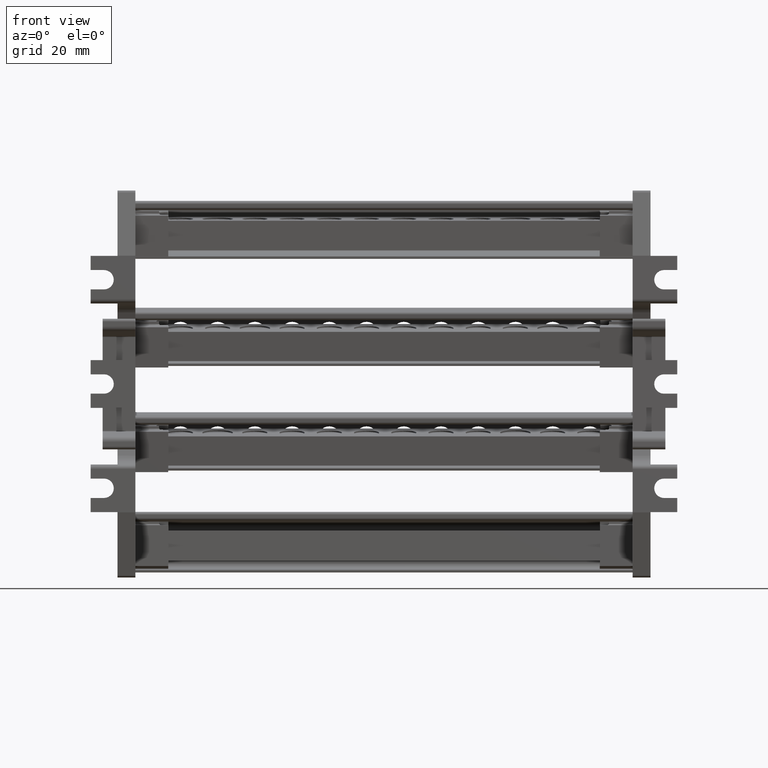
[diagram: clean part render]
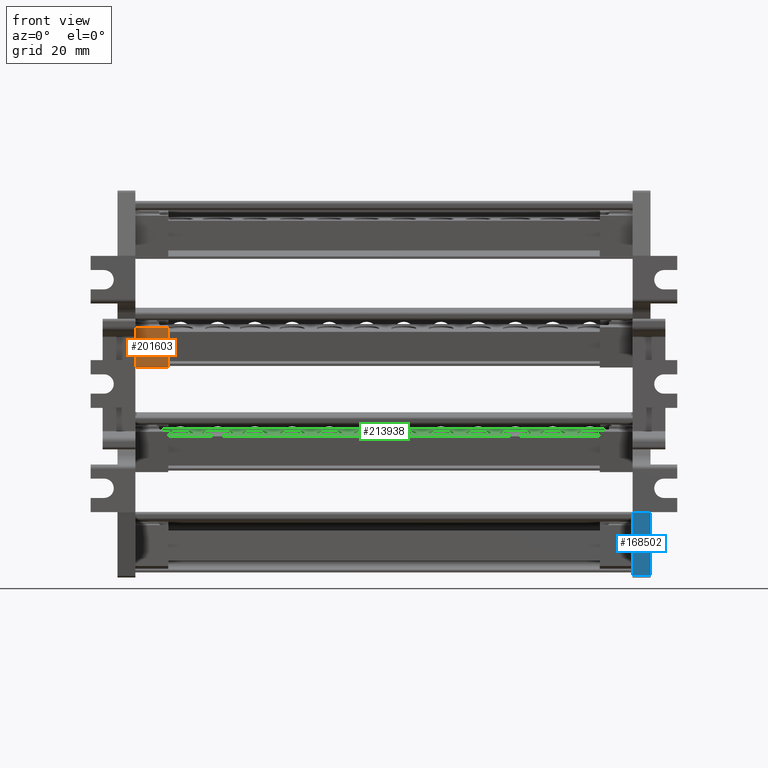
[diagram: same view with three faces highlighted in distinct colors, each labeled with its STEP entity id]
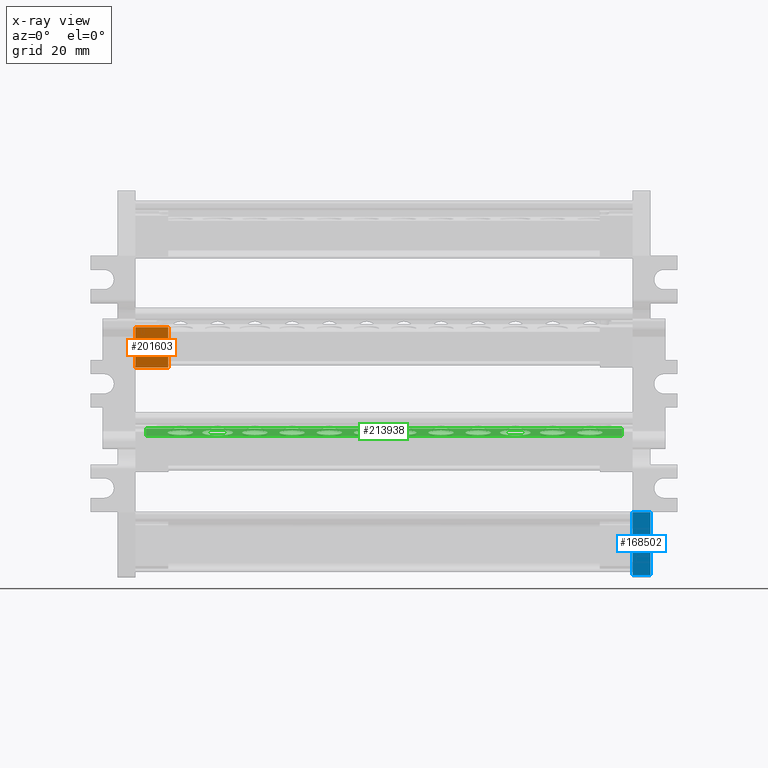
[diagram: x-ray of the same camera — body ghosted, the three highlighted faces saturated]
A machine part, front view with three faces highlighted in distinct colors.
The next image is the same camera in x-ray (body ghosted, the three faces saturated) — at least one of them is partly hidden behind the body in this view.
Their STEP definitions:

[orange] entity #201603 — the highlighted planar face has unit normal (-0, 0.9848, 0.1736).
#7823 = LINE ( 'NONE', #7865, #196217 ) ;
#7865 = CARTESIAN_POINT ( 'NONE',  ( -1402.882428931394100, 703.7368913829150200, 2317.985729284230300 ) ) ;
#7879 = DIRECTION ( 'NONE',  ( -0.0000000000000000000, 0.1736481776669305300, -0.9848077530122081300 ) ) ;
#17664 = CARTESIAN_POINT ( 'NONE',  ( -1402.882428931394100, 703.7368913829150200, 2317.985729284230300 ) ) ;
#21801 = CARTESIAN_POINT ( 'NONE',  ( -1402.882428931394100, 706.1245538258349400, 2304.444622680315700 ) ) ;
#24877 = VECTOR ( 'NONE', #89527, 1000.000000000000000 ) ;
#24900 = VECTOR ( 'NONE', #89748, 1000.000000000000000 ) ;
#29050 = B_SPLINE_CURVE_WITH_KNOTS ( 'NONE', 3,
 ( #90011, #90028, #90013, #90031 ),
 .UNSPECIFIED., .F., .F.,
 ( 4, 4 ),
 ( 0.0000000000000000000, 1.000000000000000000 ),
 .UNSPECIFIED. ) ;
#69201 = CARTESIAN_POINT ( 'NONE',  ( -1413.910428931377100, 706.1245538258349400, 2304.444622680315700 ) ) ;
#69284 = CARTESIAN_POINT ( 'NONE',  ( -1413.910428931377100, 703.7368913829149100, 2317.985729284230300 ) ) ;
#84264 = VERTEX_POINT ( 'NONE', #69201 ) ;
#84266 = VERTEX_POINT ( 'NONE', #69284 ) ;
#89526 = CARTESIAN_POINT ( 'NONE',  ( -1402.882428931394100, 706.1245538258348200, 2304.444622680315700 ) ) ;
#89527 = DIRECTION ( 'NONE',  ( -1.000000000000000000, -1.133179610292021100E-014, -1.998101392831872200E-015 ) ) ;
#89553 = LINE ( 'NONE', #89526, #24877 ) ;
#89748 = DIRECTION ( 'NONE',  ( -1.000000000000000000, -9.372581540719951800E-016, 5.315455129476955100E-015 ) ) ;
#89764 = LINE ( 'NONE', #89790, #24900 ) ;
#89790 = CARTESIAN_POINT ( 'NONE',  ( -1402.882428931394100, 703.7368913829150200, 2317.985729284230300 ) ) ;
#90011 = CARTESIAN_POINT ( 'NONE',  ( -1413.910428931377100, 706.1245538258349400, 2304.444622680315700 ) ) ;
#90013 = CARTESIAN_POINT ( 'NONE',  ( -1413.910428931360500, 704.5327788638883200, 2313.472027082925300 ) ) ;
#90028 = CARTESIAN_POINT ( 'NONE',  ( -1413.910428931360500, 705.3286663448616300, 2308.958324881620200 ) ) ;
#90031 = CARTESIAN_POINT ( 'NONE',  ( -1413.910428931377100, 703.7368913829149100, 2317.985729284230300 ) ) ;
#104055 = VERTEX_POINT ( 'NONE', #21801 ) ;
#113371 = EDGE_LOOP ( 'NONE', ( #201862, #201904, #201827, #201909 ) ) ;
#128352 = EDGE_CURVE ( 'NONE', #132770, #104055, #7823, .T. ) ;
#132770 = VERTEX_POINT ( 'NONE', #17664 ) ;
#134249 = EDGE_CURVE ( 'NONE', #104055, #84264, #89553, .T. ) ;
#134331 = EDGE_CURVE ( 'NONE', #132770, #84266, #89764, .T. ) ;
#134518 = EDGE_CURVE ( 'NONE', #84264, #84266, #29050, .T. ) ;
#152153 = FACE_OUTER_BOUND ( 'NONE', #113371, .T. ) ;
#152182 = CARTESIAN_POINT ( 'NONE',  ( -1402.882428931394100, 703.7368913829150200, 2317.985729284230300 ) ) ;
#152218 = PLANE ( 'NONE',  #159510 ) ;
#152241 = DIRECTION ( 'NONE',  ( -1.150660732336836000E-014, 0.9848077530122081300, 0.1736481776669305300 ) ) ;
#152315 = DIRECTION ( 'NONE',  ( 0.0000000000000000000, -0.1736481776669305300, 0.9848077530122081300 ) ) ;
#159510 = AXIS2_PLACEMENT_3D ( 'NONE', #152182, #152241, #152315 ) ;
#196217 = VECTOR ( 'NONE', #7879, 999.9999999999998900 ) ;
#201603 = ADVANCED_FACE ( 'NONE', ( #152153 ), #152218, .F. ) ;
#201827 = ORIENTED_EDGE ( 'NONE', *, *, #128352, .F. ) ;
#201862 = ORIENTED_EDGE ( 'NONE', *, *, #134518, .F. ) ;
#201904 = ORIENTED_EDGE ( 'NONE', *, *, #134249, .F. ) ;
#201909 = ORIENTED_EDGE ( 'NONE', *, *, #134331, .T. ) ;

[blue] entity #168502 — the highlighted planar face has unit normal (0, -0.9659, -0.2588).
#25410 = B_SPLINE_CURVE_WITH_KNOTS ( 'NONE', 3,
 ( #165782, #165787, #165775, #165799 ),
 .UNSPECIFIED., .F., .F.,
 ( 4, 4 ),
 ( 0.0000000000000000000, 1.000000000000000000 ),
 .UNSPECIFIED. ) ;
#41410 = B_SPLINE_CURVE_WITH_KNOTS ( 'NONE', 3,
 ( #189212, #189221, #189267, #189269 ),
 .UNSPECIFIED., .F., .F.,
 ( 4, 4 ),
 ( 0.0000000000000000000, 1.000000000000000000 ),
 .UNSPECIFIED. ) ;
#50232 = VECTOR ( 'NONE', #189247, 1000.000000000000000 ) ;
#50405 = VECTOR ( 'NONE', #164728, 1000.000000000000000 ) ;
#66090 = AXIS2_PLACEMENT_3D ( 'NONE', #163655, #163610, #163625 ) ;
#70984 = CARTESIAN_POINT ( 'NONE',  ( -1246.910428931360000, 681.8580108196974800, 2255.770916206310200 ) ) ;
#71031 = CARTESIAN_POINT ( 'NONE',  ( -1240.910428931360200, 681.8580108196974800, 2255.770916206309300 ) ) ;
#71039 = CARTESIAN_POINT ( 'NONE',  ( -1246.910428931360000, 687.5142856786756100, 2234.661411051029500 ) ) ;
#71102 = CARTESIAN_POINT ( 'NONE',  ( -1240.910428931360500, 687.5142856786756100, 2234.661411051029500 ) ) ;
#80463 = VERTEX_POINT ( 'NONE', #70984 ) ;
#80529 = VERTEX_POINT ( 'NONE', #71039 ) ;
#80580 = VERTEX_POINT ( 'NONE', #71102 ) ;
#80596 = VERTEX_POINT ( 'NONE', #71031 ) ;
#108654 = ORIENTED_EDGE ( 'NONE', *, *, #115560, .T. ) ;
#108665 = ORIENTED_EDGE ( 'NONE', *, *, #122534, .F. ) ;
#108815 = ORIENTED_EDGE ( 'NONE', *, *, #115706, .T. ) ;
#109038 = ORIENTED_EDGE ( 'NONE', *, *, #115453, .T. ) ;
#115453 = EDGE_CURVE ( 'NONE', #80529, #80580, #189197, .T. ) ;
#115560 = EDGE_CURVE ( 'NONE', #80596, #80463, #164785, .T. ) ;
#115706 = EDGE_CURVE ( 'NONE', #80580, #80596, #25410, .T. ) ;
#122534 = EDGE_CURVE ( 'NONE', #80529, #80463, #41410, .T. ) ;
#163597 = FACE_OUTER_BOUND ( 'NONE', #175170, .T. ) ;
#163610 = DIRECTION ( 'NONE',  ( 3.571582564057545400E-015, -0.9659258262890652000, -0.2588190451025321200 ) ) ;
#163625 = DIRECTION ( 'NONE',  ( 0.0000000000000000000, 0.2588190451025321200, -0.9659258262890652000 ) ) ;
#163655 = CARTESIAN_POINT ( 'NONE',  ( -1246.910428931359300, 665.6932929459656000, 2316.098464601089700 ) ) ;
#163675 = PLANE ( 'NONE',  #66090 ) ;
#164728 = DIRECTION ( 'NONE',  ( -1.000000000000000000, -3.449883839346902900E-015, -9.243935887342270800E-016 ) ) ;
#164785 = LINE ( 'NONE', #164815, #50405 ) ;
#164815 = CARTESIAN_POINT ( 'NONE',  ( -1246.910428931359300, 681.8580108196973700, 2255.770916206309300 ) ) ;
#165775 = CARTESIAN_POINT ( 'NONE',  ( -1240.910428931360500, 683.7434357726900800, 2248.734414487882500 ) ) ;
#165782 = CARTESIAN_POINT ( 'NONE',  ( -1240.910428931360500, 687.5142856786756100, 2234.661411051029500 ) ) ;
#165787 = CARTESIAN_POINT ( 'NONE',  ( -1240.910428931360500, 685.6288607256826700, 2241.697912769456300 ) ) ;
#165799 = CARTESIAN_POINT ( 'NONE',  ( -1240.910428931360200, 681.8580108196974800, 2255.770916206309300 ) ) ;
#168502 = ADVANCED_FACE ( 'NONE', ( #163597 ), #163675, .T. ) ;
#175170 = EDGE_LOOP ( 'NONE', ( #108665, #109038, #108815, #108654 ) ) ;
#189197 = LINE ( 'NONE', #189202, #50232 ) ;
#189202 = CARTESIAN_POINT ( 'NONE',  ( -1246.910428931359300, 687.5142856786753800, 2234.661411051029500 ) ) ;
#189212 = CARTESIAN_POINT ( 'NONE',  ( -1246.910428931360000, 687.5142856786756100, 2234.661411051029500 ) ) ;
#189221 = CARTESIAN_POINT ( 'NONE',  ( -1246.910428931359800, 685.6288607256830100, 2241.697912769456300 ) ) ;
#189247 = DIRECTION ( 'NONE',  ( 1.000000000000000000, 3.449883839346902900E-015, 9.243935887342270800E-016 ) ) ;
#189267 = CARTESIAN_POINT ( 'NONE',  ( -1246.910428931359800, 683.7434357726904200, 2248.734414487883400 ) ) ;
#189269 = CARTESIAN_POINT ( 'NONE',  ( -1246.910428931360000, 681.8580108196974800, 2255.770916206310200 ) ) ;

[green] entity #213938 — the highlighted planar face has unit normal (-0, 0.1736, -0.9848).
#3872 = LINE ( 'NONE', #3975, #158764 ) ;
#3975 = CARTESIAN_POINT ( 'NONE',  ( -1410.382428931376400, 712.8563735236994000, 2281.340049721443800 ) ) ;
#3997 = DIRECTION ( 'NONE',  ( -1.000000000000000000, -1.514491706019197600E-016, 8.589109278308477900E-016 ) ) ;
#5137 = LINE ( 'NONE', #5178, #159128 ) ;
#5178 = CARTESIAN_POINT ( 'NONE',  ( -1250.438428931344100, 727.6284898188806700, 2283.944772386447800 ) ) ;
#5199 = DIRECTION ( 'NONE',  ( -0.0000000000000000000, -0.9848077530122081300, -0.1736481776669305000 ) ) ;
#7674 = CARTESIAN_POINT ( 'NONE',  ( -1307.143045055536300, 721.0425175652554800, 2282.783487783935500 ) ) ;
#7709 = CARTESIAN_POINT ( 'NONE',  ( -1307.568836780870500, 722.0548528202281200, 2282.961989802909600 ) ) ;
#7714 = CARTESIAN_POINT ( 'NONE',  ( -1307.883844851184000, 722.5191334366692200, 2283.043855002208100 ) ) ;
#7717 = CARTESIAN_POINT ( 'NONE',  ( -1308.670605371482900, 723.2939412968236200, 2283.180474532818600 ) ) ;
#7721 = CARTESIAN_POINT ( 'NONE',  ( -1309.142048264800000, 723.6041636867295200, 2283.235175110179200 ) ) ;
#7724 = CARTESIAN_POINT ( 'NONE',  ( -1310.170000422849400, 724.0234866790076500, 2283.309113067348800 ) ) ;
#7726 = CARTESIAN_POINT ( 'NONE',  ( -1310.726105232303100, 724.1324222956883400, 2283.328321355729700 ) ) ;
#7729 = CARTESIAN_POINT ( 'NONE',  ( -1311.282428931376200, 724.1324222956882300, 2283.328321355729700 ) ) ;
#7781 = CARTESIAN_POINT ( 'NONE',  ( -1307.032428931376200, 720.4948612374180400, 2282.686921197181200 ) ) ;
#7789 = CARTESIAN_POINT ( 'NONE',  ( -1307.032428931376200, 719.9469893453862100, 2282.590316600645100 ) ) ;
#7806 = CARTESIAN_POINT ( 'NONE',  ( -1307.143045055535600, 718.8514611255172900, 2282.397145417354700 ) ) ;
#7810 = CARTESIAN_POINT ( 'NONE',  ( -1307.032428931376200, 719.3991174533547300, 2282.493712004108100 ) ) ;
#7816 = CARTESIAN_POINT ( 'NONE',  ( -1308.670605371482700, 716.6000373939492600, 2282.000158668471600 ) ) ;
#7829 = CARTESIAN_POINT ( 'NONE',  ( -1307.032428931376200, 719.9469893453862100, 2282.590316600645100 ) ) ;
#7845 = CARTESIAN_POINT ( 'NONE',  ( -1298.782428931376200, 715.7615563950845400, 2281.852311845561000 ) ) ;
#7846 = CARTESIAN_POINT ( 'NONE',  ( -1298.226105232302900, 715.7615563950846500, 2281.852311845561000 ) ) ;
#7852 = CARTESIAN_POINT ( 'NONE',  ( -1296.642048264799500, 716.2898150040434800, 2281.945458091111500 ) ) ;
#7857 = CARTESIAN_POINT ( 'NONE',  ( -1296.170605371482900, 716.6000373939493800, 2282.000158668472100 ) ) ;
#7862 = CARTESIAN_POINT ( 'NONE',  ( -1295.383844851183800, 717.3748452541035500, 2282.136778199083000 ) ) ;
#7885 = CARTESIAN_POINT ( 'NONE',  ( -1294.643045055536300, 718.8514611255175200, 2282.397145417355700 ) ) ;
#7888 = CARTESIAN_POINT ( 'NONE',  ( -1297.670000422849200, 715.8704920117651200, 2281.871520133941900 ) ) ;
#7892 = CARTESIAN_POINT ( 'NONE',  ( -1294.532428931376000, 719.3991174533548500, 2282.493712004108600 ) ) ;
#7895 = CARTESIAN_POINT ( 'NONE',  ( -1294.532428931376200, 719.9469893453864400, 2282.590316600645600 ) ) ;
#7897 = CARTESIAN_POINT ( 'NONE',  ( -1311.282428931376200, 715.7615563950843100, 2281.852311845560500 ) ) ;
#7907 = CARTESIAN_POINT ( 'NONE',  ( -1310.726105232303100, 715.7615563950844300, 2281.852311845560500 ) ) ;
#7909 = CARTESIAN_POINT ( 'NONE',  ( -1310.170000422849600, 715.8704920117649000, 2281.871520133941400 ) ) ;
#7911 = CARTESIAN_POINT ( 'NONE',  ( -1309.142048264799500, 716.2898150040430200, 2281.945458091111500 ) ) ;
#7916 = CARTESIAN_POINT ( 'NONE',  ( -1295.068836780870500, 717.8391258705448800, 2282.218643398381600 ) ) ;
#7918 = CARTESIAN_POINT ( 'NONE',  ( -1307.883844851183800, 717.3748452541030900, 2282.136778199082100 ) ) ;
#7923 = CARTESIAN_POINT ( 'NONE',  ( -1307.568836780870500, 717.8391258705446500, 2282.218643398381100 ) ) ;
#7925 = CARTESIAN_POINT ( 'NONE',  ( -1394.532428931376000, 719.3991174533539400, 2282.493712004108600 ) ) ;
#7927 = CARTESIAN_POINT ( 'NONE',  ( -1398.226105232303300, 715.7615563950834000, 2281.852311845561000 ) ) ;
#7937 = CARTESIAN_POINT ( 'NONE',  ( -1398.782428931376200, 715.7615563950834000, 2281.852311845561000 ) ) ;
#7968 = CARTESIAN_POINT ( 'NONE',  ( -1395.383844851183800, 717.3748452541023000, 2282.136778199083000 ) ) ;
#7970 = CARTESIAN_POINT ( 'NONE',  ( -1397.670000422849400, 715.8704920117642100, 2281.871520133941900 ) ) ;
#8002 = CARTESIAN_POINT ( 'NONE',  ( -1396.642048264799500, 716.2898150040421100, 2281.945458091111500 ) ) ;
#8009 = CARTESIAN_POINT ( 'NONE',  ( -1396.170605371482700, 716.6000373939481300, 2282.000158668472100 ) ) ;
#8015 = CARTESIAN_POINT ( 'NONE',  ( -1394.532428931376000, 719.9469893453855300, 2282.590316600645600 ) ) ;
#8022 = CARTESIAN_POINT ( 'NONE',  ( -1395.068836780870500, 717.8391258705436300, 2282.218643398381600 ) ) ;
#8029 = CARTESIAN_POINT ( 'NONE',  ( -1394.643045055535800, 718.8514611255163800, 2282.397145417355700 ) ) ;
#8284 = CARTESIAN_POINT ( 'NONE',  ( -1345.068836780870000, 722.0548528202274400, 2282.961989802909600 ) ) ;
#8290 = CARTESIAN_POINT ( 'NONE',  ( -1348.782428931376400, 724.1324222956877700, 2283.328321355729700 ) ) ;
#8296 = CARTESIAN_POINT ( 'NONE',  ( -1347.670000422849400, 724.0234866790071900, 2283.309113067348800 ) ) ;
#8300 = CARTESIAN_POINT ( 'NONE',  ( -1344.532428931376200, 720.4948612374175800, 2282.686921197181200 ) ) ;
#8321 = CARTESIAN_POINT ( 'NONE',  ( -1344.532428931376000, 719.9469893453857600, 2282.590316600645100 ) ) ;
#8327 = CARTESIAN_POINT ( 'NONE',  ( -1346.642048264799800, 723.6041636867292900, 2283.235175110179200 ) ) ;
#8336 = CARTESIAN_POINT ( 'NONE',  ( -1344.643045055536300, 721.0425175652550300, 2282.783487783935500 ) ) ;
#8346 = CARTESIAN_POINT ( 'NONE',  ( -1348.226105232303300, 724.1324222956880000, 2283.328321355729700 ) ) ;
#8350 = CARTESIAN_POINT ( 'NONE',  ( -1346.170605371482700, 723.2939412968231600, 2283.180474532818600 ) ) ;
#8353 = CARTESIAN_POINT ( 'NONE',  ( -1345.383844851184200, 722.5191334366691100, 2283.043855002208100 ) ) ;
#8390 = CARTESIAN_POINT ( 'NONE',  ( -1319.532428931376400, 719.9469893453862100, 2282.590316600645600 ) ) ;
#8415 = CARTESIAN_POINT ( 'NONE',  ( -1321.170605371482700, 723.2939412968235000, 2283.180474532819500 ) ) ;
#8421 = CARTESIAN_POINT ( 'NONE',  ( -1319.643045055535800, 721.0425175652551400, 2282.783487783936400 ) ) ;
#8434 = CARTESIAN_POINT ( 'NONE',  ( -1319.532428931376700, 720.4948612374179200, 2282.686921197182500 ) ) ;
#8436 = CARTESIAN_POINT ( 'NONE',  ( -1323.226105232303100, 724.1324222956882300, 2283.328321355730200 ) ) ;
#8442 = CARTESIAN_POINT ( 'NONE',  ( -1322.670000422849400, 724.0234866790075300, 2283.309113067349700 ) ) ;
#8443 = CARTESIAN_POINT ( 'NONE',  ( -1321.642048264800000, 723.6041636867292900, 2283.235175110179600 ) ) ;
#8447 = CARTESIAN_POINT ( 'NONE',  ( -1323.782428931376200, 724.1324222956882300, 2283.328321355730200 ) ) ;
#8455 = CARTESIAN_POINT ( 'NONE',  ( -1320.068836780870700, 722.0548528202281200, 2282.961989802909600 ) ) ;
#8457 = CARTESIAN_POINT ( 'NONE',  ( -1320.383844851183800, 722.5191334366691100, 2283.043855002209100 ) ) ;
#8469 = CARTESIAN_POINT ( 'NONE',  ( -1259.142048264799300, 716.2898150040437000, 2281.945458091111500 ) ) ;
#8501 = CARTESIAN_POINT ( 'NONE',  ( -1261.282428931376200, 715.7615563950849900, 2281.852311845561400 ) ) ;
#8511 = CARTESIAN_POINT ( 'NONE',  ( -1260.726105232302900, 715.7615563950852200, 2281.852311845561000 ) ) ;
#8524 = CARTESIAN_POINT ( 'NONE',  ( -1260.170000422849200, 715.8704920117656900, 2281.871520133941900 ) ) ;
#8527 = CARTESIAN_POINT ( 'NONE',  ( -1257.032428931376400, 719.3991174533554200, 2282.493712004108600 ) ) ;
#8550 = CARTESIAN_POINT ( 'NONE',  ( -1257.143045055535600, 718.8514611255180900, 2282.397145417355700 ) ) ;
#8551 = CARTESIAN_POINT ( 'NONE',  ( -1258.670605371482900, 716.6000373939499500, 2282.000158668472100 ) ) ;
#8552 = CARTESIAN_POINT ( 'NONE',  ( -1257.568836780870500, 717.8391258705453300, 2282.218643398381600 ) ) ;
#8567 = CARTESIAN_POINT ( 'NONE',  ( -1361.282428931376200, 715.7615563950838600, 2281.852311845561000 ) ) ;
#8574 = CARTESIAN_POINT ( 'NONE',  ( -1257.883844851183800, 717.3748452541041200, 2282.136778199083000 ) ) ;
#8576 = CARTESIAN_POINT ( 'NONE',  ( -1360.726105232302600, 715.7615563950838600, 2281.852311845561000 ) ) ;
#8583 = CARTESIAN_POINT ( 'NONE',  ( -1257.032428931376400, 719.9469893453871200, 2282.590316600646000 ) ) ;
#8585 = DIRECTION ( 'NONE',  ( 0.0000000000000000000, 0.9848077530122156800, 0.1736481776668873700 ) ) ;
#8587 = CARTESIAN_POINT ( 'NONE',  ( -1386.282428931376200, 719.9469893453855300, 2282.590316600645600 ) ) ;
#8588 = CARTESIAN_POINT ( 'NONE',  ( -1394.643045055535800, 721.0425175652544600, 2282.783487783936400 ) ) ;
#8594 = CARTESIAN_POINT ( 'NONE',  ( -1358.670605371482700, 716.6000373939488100, 2282.000158668472100 ) ) ;
#8597 = CARTESIAN_POINT ( 'NONE',  ( -1394.532428931376200, 720.4948612374173500, 2282.686921197182500 ) ) ;
#8601 = CARTESIAN_POINT ( 'NONE',  ( -1323.226105232302900, 715.7615563950844300, 2281.852311845561000 ) ) ;
#8602 = CARTESIAN_POINT ( 'NONE',  ( -1320.383844851183800, 717.3748452541029800, 2282.136778199083000 ) ) ;
#8603 = CARTESIAN_POINT ( 'NONE',  ( -1320.068836780870500, 717.8391258705445400, 2282.218643398381600 ) ) ;
#8604 = CARTESIAN_POINT ( 'NONE',  ( -1357.032428931376200, 719.3991174533543900, 2282.493712004108600 ) ) ;
#8605 = CARTESIAN_POINT ( 'NONE',  ( -1357.032428931376200, 719.9469893453857600, 2282.590316600645600 ) ) ;
#8606 = CARTESIAN_POINT ( 'NONE',  ( -1396.642048264799800, 723.6041636867286100, 2283.235175110179600 ) ) ;
#8607 = CARTESIAN_POINT ( 'NONE',  ( -1397.670000422849200, 724.0234866790068500, 2283.309113067349700 ) ) ;
#8608 = CARTESIAN_POINT ( 'NONE',  ( -1357.143045055535800, 718.8514611255169500, 2282.397145417355700 ) ) ;
#8610 = CARTESIAN_POINT ( 'NONE',  ( -1395.383844851184000, 722.5191334366686500, 2283.043855002209100 ) ) ;
#8611 = CARTESIAN_POINT ( 'NONE',  ( -1398.782428931376200, 724.1324222956873200, 2283.328321355730200 ) ) ;
#8612 = CARTESIAN_POINT ( 'NONE',  ( -1357.568836780870700, 717.8391258705440800, 2282.218643398381600 ) ) ;
#8613 = CARTESIAN_POINT ( 'NONE',  ( -1319.643045055535800, 718.8514611255172900, 2282.397145417355700 ) ) ;
#8614 = CARTESIAN_POINT ( 'NONE',  ( -1321.170605371482700, 716.6000373939490400, 2282.000158668472100 ) ) ;
#8615 = CARTESIAN_POINT ( 'NONE',  ( -1319.532428931376400, 719.9469893453862100, 2282.590316600645600 ) ) ;
#8616 = CARTESIAN_POINT ( 'NONE',  ( -1395.068836780870000, 722.0548528202272100, 2282.961989802909600 ) ) ;
#8619 = CARTESIAN_POINT ( 'NONE',  ( -1319.532428931376400, 719.3991174533545100, 2282.493712004108600 ) ) ;
#8620 = CARTESIAN_POINT ( 'NONE',  ( -1396.170605371482500, 723.2939412968226000, 2283.180474532819500 ) ) ;
#8621 = CARTESIAN_POINT ( 'NONE',  ( -1359.142048264799300, 716.2898150040426800, 2281.945458091111500 ) ) ;
#8622 = CARTESIAN_POINT ( 'NONE',  ( -1394.532428931376000, 719.9469893453855300, 2282.590316600645600 ) ) ;
#8624 = CARTESIAN_POINT ( 'NONE',  ( -1322.670000422849200, 715.8704920117649000, 2281.871520133941900 ) ) ;
#8625 = CARTESIAN_POINT ( 'NONE',  ( -1398.226105232303100, 724.1324222956874300, 2283.328321355730200 ) ) ;
#8628 = CARTESIAN_POINT ( 'NONE',  ( -1360.170000422848900, 715.8704920117646700, 2281.871520133941900 ) ) ;
#8629 = DIRECTION ( 'NONE',  ( 8.721610133589194200E-016, -0.1736481776669304700, 0.9848077530122080200 ) ) ;
#8630 = CARTESIAN_POINT ( 'NONE',  ( -1357.883844851183800, 717.3748452541029800, 2282.136778199083000 ) ) ;
#8632 = CARTESIAN_POINT ( 'NONE',  ( -1321.642048264799300, 716.2898150040430200, 2281.945458091111500 ) ) ;
#8635 = CARTESIAN_POINT ( 'NONE',  ( -1323.782428931376200, 715.7615563950842000, 2281.852311845561000 ) ) ;
#8692 = CARTESIAN_POINT ( 'NONE',  ( -1257.032428931376400, 719.9469893453871200, 2282.590316600646000 ) ) ;
#8698 = CARTESIAN_POINT ( 'NONE',  ( -1257.032428931375800, 720.4948612374187200, 2282.686921197182500 ) ) ;
#8704 = CARTESIAN_POINT ( 'NONE',  ( -1258.670605371482900, 723.2939412968240700, 2283.180474532819500 ) ) ;
#8708 = CARTESIAN_POINT ( 'NONE',  ( -1257.568836780870500, 722.0548528202286900, 2282.961989802909600 ) ) ;
#8709 = CARTESIAN_POINT ( 'NONE',  ( -1257.143045055535600, 721.0425175652561600, 2282.783487783936400 ) ) ;
#8729 = CARTESIAN_POINT ( 'NONE',  ( -1260.170000422849200, 724.0234866790086700, 2283.309113067349700 ) ) ;
#8737 = CARTESIAN_POINT ( 'NONE',  ( -1260.726105232303100, 724.1324222956891400, 2283.328321355730200 ) ) ;
#8739 = CARTESIAN_POINT ( 'NONE',  ( -1257.883844851183800, 722.5191334366700200, 2283.043855002209100 ) ) ;
#8750 = CARTESIAN_POINT ( 'NONE',  ( -1259.142048264799800, 723.6041636867302000, 2283.235175110179600 ) ) ;
#8751 = CARTESIAN_POINT ( 'NONE',  ( -1261.282428931376200, 724.1324222956890300, 2283.328321355730600 ) ) ;
#8762 = CARTESIAN_POINT ( 'NONE',  ( -1336.282428931376200, 724.1324222956881200, 2283.328321355730200 ) ) ;
#8765 = CARTESIAN_POINT ( 'NONE',  ( -1334.142048264799800, 723.6041636867292900, 2283.235175110179600 ) ) ;
#8769 = CARTESIAN_POINT ( 'NONE',  ( -1332.143045055536300, 721.0425175652551400, 2282.783487783936400 ) ) ;
#8774 = CARTESIAN_POINT ( 'NONE',  ( -1332.883844851184000, 722.5191334366691100, 2283.043855002209100 ) ) ;
#8775 = CARTESIAN_POINT ( 'NONE',  ( -1332.032428931376000, 719.9469893453859900, 2282.590316600645600 ) ) ;
#8781 = CARTESIAN_POINT ( 'NONE',  ( -1332.568836780870200, 722.0548528202281200, 2282.961989802909600 ) ) ;
#8787 = CARTESIAN_POINT ( 'NONE',  ( -1335.170000422849200, 724.0234866790075300, 2283.309113067349700 ) ) ;
#8799 = CARTESIAN_POINT ( 'NONE',  ( -1332.032428931376200, 720.4948612374179200, 2282.686921197182500 ) ) ;
#8801 = CARTESIAN_POINT ( 'NONE',  ( -1333.670605371482700, 723.2939412968235000, 2283.180474532819500 ) ) ;
#8811 = CARTESIAN_POINT ( 'NONE',  ( -1335.726105232303100, 724.1324222956882300, 2283.328321355730200 ) ) ;
#8819 = CARTESIAN_POINT ( 'NONE',  ( -1332.143045055535800, 718.8514611255171800, 2282.397145417355700 ) ) ;
#8821 = CARTESIAN_POINT ( 'NONE',  ( -1332.568836780870200, 717.8391258705443100, 2282.218643398381600 ) ) ;
#8829 = CARTESIAN_POINT ( 'NONE',  ( -1333.670605371482900, 716.6000373939490400, 2282.000158668472100 ) ) ;
#8830 = CARTESIAN_POINT ( 'NONE',  ( -1335.170000422848900, 715.8704920117649000, 2281.871520133941900 ) ) ;
#8836 = CARTESIAN_POINT ( 'NONE',  ( -1332.883844851183800, 717.3748452541030900, 2282.136778199083000 ) ) ;
#8842 = CARTESIAN_POINT ( 'NONE',  ( -1332.032428931376000, 719.3991174533545100, 2282.493712004108600 ) ) ;
#8853 = CARTESIAN_POINT ( 'NONE',  ( -1335.726105232303100, 715.7615563950844300, 2281.852311845561000 ) ) ;
#8854 = CARTESIAN_POINT ( 'NONE',  ( -1334.142048264799100, 716.2898150040430200, 2281.945458091111500 ) ) ;
#8856 = CARTESIAN_POINT ( 'NONE',  ( -1332.032428931376000, 719.9469893453859900, 2282.590316600645600 ) ) ;
#8858 = CARTESIAN_POINT ( 'NONE',  ( -1336.282428931376200, 715.7615563950840900, 2281.852311845561000 ) ) ;
#9338 = DIRECTION ( 'NONE',  ( 0.0000000000000000000, 0.9848077530122075800, 0.1736481776669326100 ) ) ;
#9379 = CARTESIAN_POINT ( 'NONE',  ( -1273.782428931376200, 719.9469893453867800, 2282.590316600645600 ) ) ;
#9387 = DIRECTION ( 'NONE',  ( 8.721610133589194200E-016, -0.1736481776669304700, 0.9848077530122080200 ) ) ;
#9395 = DIRECTION ( 'NONE',  ( 8.721610133589194200E-016, -0.1736481776669304700, 0.9848077530122080200 ) ) ;
#9431 = CARTESIAN_POINT ( 'NONE',  ( -1286.282428931376400, 719.9469893453865600, 2282.590316600645600 ) ) ;
#9438 = DIRECTION ( 'NONE',  ( 0.0000000000000000000, 0.9848077530122156800, 0.1736481776668873700 ) ) ;
#10266 = CARTESIAN_POINT ( 'NONE',  ( -1297.670000422849200, 724.0234866790079900, 2283.309113067349700 ) ) ;
#10267 = CARTESIAN_POINT ( 'NONE',  ( -1357.568836780870000, 722.0548528202274400, 2282.961989802909600 ) ) ;
#10268 = CARTESIAN_POINT ( 'NONE',  ( -1294.532428931376200, 719.9469893453864400, 2282.590316600645600 ) ) ;
#10269 = CARTESIAN_POINT ( 'NONE',  ( -1360.726105232302900, 724.1324222956880000, 2283.328321355730200 ) ) ;
#10275 = CARTESIAN_POINT ( 'NONE',  ( -1357.143045055536500, 721.0425175652550300, 2282.783487783936400 ) ) ;
#10280 = CARTESIAN_POINT ( 'NONE',  ( -1295.068836780870200, 722.0548528202283500, 2282.961989802909600 ) ) ;
#10281 = CARTESIAN_POINT ( 'NONE',  ( -1295.383844851184000, 722.5191334366695600, 2283.043855002209100 ) ) ;
#10282 = CARTESIAN_POINT ( 'NONE',  ( -1296.642048264799800, 723.6041636867296300, 2283.235175110179600 ) ) ;
#10287 = CARTESIAN_POINT ( 'NONE',  ( -1294.643045055536500, 721.0425175652557100, 2282.783487783936400 ) ) ;
#10293 = CARTESIAN_POINT ( 'NONE',  ( -1359.142048264800000, 723.6041636867292900, 2283.235175110179600 ) ) ;
#10296 = CARTESIAN_POINT ( 'NONE',  ( -1298.226105232303100, 724.1324222956885700, 2283.328321355730200 ) ) ;
#10299 = CARTESIAN_POINT ( 'NONE',  ( -1361.282428931376200, 724.1324222956877700, 2283.328321355730200 ) ) ;
#10301 = CARTESIAN_POINT ( 'NONE',  ( -1298.782428931376200, 724.1324222956885700, 2283.328321355730600 ) ) ;
#10303 = CARTESIAN_POINT ( 'NONE',  ( -1294.532428931376400, 720.4948612374183800, 2282.686921197182500 ) ) ;
#10308 = CARTESIAN_POINT ( 'NONE',  ( -1357.032428931376200, 719.9469893453857600, 2282.590316600645600 ) ) ;
#10309 = CARTESIAN_POINT ( 'NONE',  ( -1357.032428931376400, 720.4948612374175800, 2282.686921197182500 ) ) ;
#10310 = CARTESIAN_POINT ( 'NONE',  ( -1357.883844851184000, 722.5191334366691100, 2283.043855002209100 ) ) ;
#10314 = CARTESIAN_POINT ( 'NONE',  ( -1360.170000422849400, 724.0234866790071900, 2283.309113067349700 ) ) ;
#10317 = CARTESIAN_POINT ( 'NONE',  ( -1296.170605371482500, 723.2939412968238500, 2283.180474532819500 ) ) ;
#10318 = CARTESIAN_POINT ( 'NONE',  ( -1358.670605371482700, 723.2939412968231600, 2283.180474532819500 ) ) ;
#10376 = CARTESIAN_POINT ( 'NONE',  ( -1373.782428931376200, 719.9469893453857600, 2282.590316600645600 ) ) ;
#10408 = DIRECTION ( 'NONE',  ( 8.721610133589194200E-016, -0.1736481776669304700, 0.9848077530122080200 ) ) ;
#10421 = DIRECTION ( 'NONE',  ( 0.0000000000000000000, 0.9848077530122075800, 0.1736481776669326100 ) ) ;
#11833 = DIRECTION ( 'NONE',  ( 1.480297366166858100E-014, -0.9848077530122064700, -0.1736481776669387100 ) ) ;
#11839 = CARTESIAN_POINT ( 'NONE',  ( -1402.882428931376100, 712.8563735236973600, 2281.340049721443400 ) ) ;
#11877 = LINE ( 'NONE', #11889, #159333 ) ;
#11889 = CARTESIAN_POINT ( 'NONE',  ( -1410.382428931376100, 727.6284898188805500, 2283.944772386447800 ) ) ;
#11937 = DIRECTION ( 'NONE',  ( -1.000000000000000000, -1.133179610292021100E-014, -1.998101392831872200E-015 ) ) ;
#11976 = LINE ( 'NONE', #11839, #159348 ) ;
#13782 = LINE ( 'NONE', #13787, #159147 ) ;
#13787 = CARTESIAN_POINT ( 'NONE',  ( -1410.382428931376400, 712.8563735236994000, 2281.340049721443800 ) ) ;
#13827 = DIRECTION ( 'NONE',  ( -1.000000000000000000, -1.514491706019197600E-016, 8.589109278308477900E-016 ) ) ;
#13972 = CARTESIAN_POINT ( 'NONE',  ( -1410.382428931376400, 727.6284898188805500, 2283.944772386447800 ) ) ;
#14010 = CARTESIAN_POINT ( 'NONE',  ( -1347.670000422849900, 715.8704920117646700, 2281.871520133941400 ) ) ;
#14012 = CARTESIAN_POINT ( 'NONE',  ( -1345.383844851184000, 717.3748452541029800, 2282.136778199082100 ) ) ;
#14013 = DIRECTION ( 'NONE',  ( 1.000000000000000000, 1.514491706019197600E-016, -8.589109278308477900E-016 ) ) ;
#14028 = LINE ( 'NONE', #13972, #159220 ) ;
#14036 = CARTESIAN_POINT ( 'NONE',  ( -1344.532428931376400, 719.3991174533543900, 2282.493712004108100 ) ) ;
#14039 = CARTESIAN_POINT ( 'NONE',  ( -1348.226105232303300, 715.7615563950838600, 2281.852311845560500 ) ) ;
#14045 = CARTESIAN_POINT ( 'NONE',  ( -1344.643045055535800, 718.8514611255169500, 2282.397145417354700 ) ) ;
#14048 = CARTESIAN_POINT ( 'NONE',  ( -1345.068836780870900, 717.8391258705440800, 2282.218643398381100 ) ) ;
#14068 = CARTESIAN_POINT ( 'NONE',  ( -1346.642048264800000, 716.2898150040426800, 2281.945458091111500 ) ) ;
#14075 = CARTESIAN_POINT ( 'NONE',  ( -1344.532428931376000, 719.9469893453857600, 2282.590316600645100 ) ) ;
#14081 = CARTESIAN_POINT ( 'NONE',  ( -1346.170605371482900, 716.6000373939488100, 2282.000158668471600 ) ) ;
#14106 = CARTESIAN_POINT ( 'NONE',  ( -1348.782428931376400, 715.7615563950838600, 2281.852311845560500 ) ) ;
#29436 = AXIS2_PLACEMENT_3D ( 'NONE', #59169, #59154, #59127 ) ;
#30961 = B_SPLINE_CURVE_WITH_KNOTS ( 'NONE', 3,
 ( #204413, #204449, #191980, #191981, #192801, #206896, #206921, #206927, #206903, #206938 ),
 .UNSPECIFIED., .F., .F.,
 ( 4, 2, 2, 2, 4 ),
 ( 0.5000000000000000000, 0.6250000000000000000, 0.7500000000000000000, 0.8750000000000000000, 1.000000000000000000 ),
 .UNSPECIFIED. ) ;
#49763 = B_SPLINE_CURVE_WITH_KNOTS ( 'NONE', 3,
 ( #80240, #80302, #80335, #80367, #80248, #80321, #80323, #80280, #80337, #80325 ),
 .UNSPECIFIED., .F., .F.,
 ( 4, 2, 2, 2, 4 ),
 ( 0.0000000000000000000, 0.1250000000000000000, 0.2500000000000000000, 0.3750000000000000000, 0.5000000000000000000 ),
 .UNSPECIFIED. ) ;
#49766 = B_SPLINE_CURVE_WITH_KNOTS ( 'NONE', 3,
 ( #83527, #83457, #83484, #83542, #83449, #83515, #83536, #83489, #83538, #83557 ),
 .UNSPECIFIED., .F., .F.,
 ( 4, 2, 2, 2, 4 ),
 ( 0.0000000000000000000, 0.1250000000000000000, 0.2500000000000000000, 0.3750000000000000000, 0.5000000000000000000 ),
 .UNSPECIFIED. ) ;
#49829 = B_SPLINE_CURVE_WITH_KNOTS ( 'NONE', 3,
 ( #79983, #79963, #79990, #79979, #79945, #79956, #79949, #79981, #79955, #79958 ),
 .UNSPECIFIED., .F., .F.,
 ( 4, 2, 2, 2, 4 ),
 ( 0.0000000000000000000, 0.1250000000000000000, 0.2500000000000000000, 0.3750000000000000000, 0.5000000000000000000 ),
 .UNSPECIFIED. ) ;
#49833 = B_SPLINE_CURVE_WITH_KNOTS ( 'NONE', 3,
 ( #79909, #79878, #79953, #79950, #79961, #79977, #79987, #79960, #79980, #79971 ),
 .UNSPECIFIED., .F., .F.,
 ( 4, 2, 2, 2, 4 ),
 ( 0.5000000000000000000, 0.6250000000000000000, 0.7500000000000000000, 0.8750000000000000000, 1.000000000000000000 ),
 .UNSPECIFIED. ) ;
#49848 = B_SPLINE_CURVE_WITH_KNOTS ( 'NONE', 3,
 ( #82005, #82137, #82145, #82062, #82147, #82013, #82107, #82123, #82089, #82150 ),
 .UNSPECIFIED., .F., .F.,
 ( 4, 2, 2, 2, 4 ),
 ( 0.0000000000000000000, 0.1250000000000000000, 0.2500000000000000000, 0.3750000000000000000, 0.5000000000000000000 ),
 .UNSPECIFIED. ) ;
#49853 = B_SPLINE_CURVE_WITH_KNOTS ( 'NONE', 3,
 ( #82270, #82222, #82382, #82480, #82342, #82379, #82489, #82447, #82399, #82345 ),
 .UNSPECIFIED., .F., .F.,
 ( 4, 2, 2, 2, 4 ),
 ( 0.5000000000000000000, 0.6250000000000000000, 0.7500000000000000000, 0.8750000000000000000, 1.000000000000000000 ),
 .UNSPECIFIED. ) ;
#49855 = B_SPLINE_CURVE_WITH_KNOTS ( 'NONE', 3,
 ( #82588, #82618, #82736, #82745, #82719, #82874, #82857, #82837, #82742, #82794 ),
 .UNSPECIFIED., .F., .F.,
 ( 4, 2, 2, 2, 4 ),
 ( 0.5000000000000000000, 0.6250000000000000000, 0.7500000000000000000, 0.8750000000000000000, 1.000000000000000000 ),
 .UNSPECIFIED. ) ;
#49858 = B_SPLINE_CURVE_WITH_KNOTS ( 'NONE', 3,
 ( #82551, #82585, #82608, #82659, #82610, #82613, #82621, #82644, #82653, #82863 ),
 .UNSPECIFIED., .F., .F.,
 ( 4, 2, 2, 2, 4 ),
 ( 0.0000000000000000000, 0.1250000000000000000, 0.2500000000000000000, 0.3750000000000000000, 0.5000000000000000000 ),
 .UNSPECIFIED. ) ;
#49871 = B_SPLINE_CURVE_WITH_KNOTS ( 'NONE', 3,
 ( #82120, #82008, #82056, #82143, #81995, #82104, #82132, #82067, #82135, #82160 ),
 .UNSPECIFIED., .F., .F.,
 ( 4, 2, 2, 2, 4 ),
 ( 0.0000000000000000000, 0.1250000000000000000, 0.2500000000000000000, 0.3750000000000000000, 0.5000000000000000000 ),
 .UNSPECIFIED. ) ;
#49890 = B_SPLINE_CURVE_WITH_KNOTS ( 'NONE', 3,
 ( #80954, #81024, #80958, #80964, #80968, #80970, #80972, #80974, #80976, #81067 ),
 .UNSPECIFIED., .F., .F.,
 ( 4, 2, 2, 2, 4 ),
 ( 0.0000000000000000000, 0.1250000000000000000, 0.2500000000000000000, 0.3750000000000000000, 0.5000000000000000000 ),
 .UNSPECIFIED. ) ;
#49893 = B_SPLINE_CURVE_WITH_KNOTS ( 'NONE', 3,
 ( #81166, #81158, #81258, #81269, #81271, #81168, #81174, #81178, #81389, #81281 ),
 .UNSPECIFIED., .F., .F.,
 ( 4, 2, 2, 2, 4 ),
 ( 0.5000000000000000000, 0.6250000000000000000, 0.7500000000000000000, 0.8750000000000000000, 1.000000000000000000 ),
 .UNSPECIFIED. ) ;
#49937 = B_SPLINE_CURVE_WITH_KNOTS ( 'NONE', 3,
 ( #82435, #82486, #82647, #82557, #82624, #82662, #82635, #82688, #82605, #82690 ),
 .UNSPECIFIED., .F., .F.,
 ( 4, 2, 2, 2, 4 ),
 ( 0.5000000000000000000, 0.6250000000000000000, 0.7500000000000000000, 0.8750000000000000000, 1.000000000000000000 ),
 .UNSPECIFIED. ) ;
#49947 = B_SPLINE_CURVE_WITH_KNOTS ( 'NONE', 3,
 ( #82114, #82339, #82302, #82210, #82253, #82162, #82183, #82288, #82299, #82267 ),
 .UNSPECIFIED., .F., .F.,
 ( 4, 2, 2, 2, 4 ),
 ( 0.0000000000000000000, 0.1250000000000000000, 0.2500000000000000000, 0.3750000000000000000, 0.5000000000000000000 ),
 .UNSPECIFIED. ) ;
#49982 = B_SPLINE_CURVE_WITH_KNOTS ( 'NONE', 3,
 ( #80933, #81036, #81047, #81074, #81053, #81082, #81103, #81055, #81057, #81142 ),
 .UNSPECIFIED., .F., .F.,
 ( 4, 2, 2, 2, 4 ),
 ( 0.5000000000000000000, 0.6250000000000000000, 0.7500000000000000000, 0.8750000000000000000, 1.000000000000000000 ),
 .UNSPECIFIED. ) ;
#50006 = B_SPLINE_CURVE_WITH_KNOTS ( 'NONE', 3,
 ( #82213, #82259, #82256, #82219, #82188, #82191, #82233, #82336, #82225, #82194 ),
 .UNSPECIFIED., .F., .F.,
 ( 4, 2, 2, 2, 4 ),
 ( 0.5000000000000000000, 0.6250000000000000000, 0.7500000000000000000, 0.8750000000000000000, 1.000000000000000000 ),
 .UNSPECIFIED. ) ;
#59059 = FACE_BOUND ( 'NONE', #134475, .T. ) ;
#59081 = FACE_BOUND ( 'NONE', #134276, .T. ) ;
#59082 = FACE_BOUND ( 'NONE', #134497, .T. ) ;
#59083 = FACE_BOUND ( 'NONE', #134507, .T. ) ;
#59087 = FACE_BOUND ( 'NONE', #134597, .T. ) ;
#59088 = FACE_BOUND ( 'NONE', #134226, .T. ) ;
#59091 = FACE_BOUND ( 'NONE', #134479, .T. ) ;
#59095 = PLANE ( 'NONE',  #29436 ) ;
#59096 = FACE_BOUND ( 'NONE', #134290, .T. ) ;
#59100 = FACE_BOUND ( 'NONE', #134347, .T. ) ;
#59110 = FACE_OUTER_BOUND ( 'NONE', #134541, .T. ) ;
#59111 = FACE_BOUND ( 'NONE', #134202, .T. ) ;
#59112 = FACE_BOUND ( 'NONE', #134258, .T. ) ;
#59113 = FACE_BOUND ( 'NONE', #134513, .T. ) ;
#59127 = DIRECTION ( 'NONE',  ( 0.0000000000000000000, 0.9848077530122081300, 0.1736481776669305000 ) ) ;
#59154 = DIRECTION ( 'NONE',  ( -8.721610133589194200E-016, 0.1736481776669305000, -0.9848077530122081300 ) ) ;
#59169 = CARTESIAN_POINT ( 'NONE',  ( -1410.382428931376400, 727.6284898188806700, 2283.944772386447800 ) ) ;
#66605 = CIRCLE ( 'NONE', #66652, 4.249999999999943200 ) ;
#66652 = AXIS2_PLACEMENT_3D ( 'NONE', #80743, #80747, #80699 ) ;
#66681 = AXIS2_PLACEMENT_3D ( 'NONE', #82424, #82350, #82353 ) ;
#66685 = AXIS2_PLACEMENT_3D ( 'NONE', #82025, #82034, #82037 ) ;
#66691 = CIRCLE ( 'NONE', #66681, 5.150000000000099800 ) ;
#66709 = CIRCLE ( 'NONE', #66685, 4.249999999999943200 ) ;
#66717 = AXIS2_PLACEMENT_3D ( 'NONE', #82083, #82101, #82050 ) ;
#66741 = CIRCLE ( 'NONE', #66717, 5.150000000000099800 ) ;
#78153 = VERTEX_POINT ( 'NONE', #96209 ) ;
#78163 = VERTEX_POINT ( 'NONE', #96230 ) ;
#78174 = VERTEX_POINT ( 'NONE', #96195 ) ;
#79878 = CARTESIAN_POINT ( 'NONE',  ( -1361.838752630449800, 724.1324222956878900, 2283.328321355730200 ) ) ;
#79909 = CARTESIAN_POINT ( 'NONE',  ( -1361.282428931376200, 724.1324222956877700, 2283.328321355730200 ) ) ;
#79945 = CARTESIAN_POINT ( 'NONE',  ( -1327.181013011568400, 717.3748452541030900, 2282.136778199082500 ) ) ;
#79949 = CARTESIAN_POINT ( 'NONE',  ( -1325.922809597952400, 716.2898150040429100, 2281.945458091111500 ) ) ;
#79950 = CARTESIAN_POINT ( 'NONE',  ( -1363.422809597952400, 723.6041636867292900, 2283.235175110178700 ) ) ;
#79953 = CARTESIAN_POINT ( 'NONE',  ( -1362.394857439903300, 724.0234866790075300, 2283.309113067349700 ) ) ;
#79955 = CARTESIAN_POINT ( 'NONE',  ( -1324.338752630449600, 715.7615563950843100, 2281.852311845561400 ) ) ;
#79956 = CARTESIAN_POINT ( 'NONE',  ( -1326.394252491269500, 716.6000373939489200, 2282.000158668472100 ) ) ;
#79958 = CARTESIAN_POINT ( 'NONE',  ( -1323.782428931376200, 715.7615563950842000, 2281.852311845561000 ) ) ;
#79960 = CARTESIAN_POINT ( 'NONE',  ( -1365.421812807216600, 721.0425175652552500, 2282.783487783935900 ) ) ;
#79961 = CARTESIAN_POINT ( 'NONE',  ( -1363.894252491269500, 723.2939412968231600, 2283.180474532819500 ) ) ;
#79963 = CARTESIAN_POINT ( 'NONE',  ( -1328.032428931376200, 719.3991174533545100, 2282.493712004108100 ) ) ;
#79971 = CARTESIAN_POINT ( 'NONE',  ( -1365.532428931376400, 719.9469893453857600, 2282.590316600645600 ) ) ;
#79977 = CARTESIAN_POINT ( 'NONE',  ( -1364.681013011568400, 722.5191334366689900, 2283.043855002208600 ) ) ;
#79979 = CARTESIAN_POINT ( 'NONE',  ( -1327.496021081881300, 717.8391258705443100, 2282.218643398380700 ) ) ;
#79980 = CARTESIAN_POINT ( 'NONE',  ( -1365.532428931376400, 720.4948612374174700, 2282.686921197182500 ) ) ;
#79981 = CARTESIAN_POINT ( 'NONE',  ( -1324.894857439903300, 715.8704920117647800, 2281.871520133942300 ) ) ;
#79983 = CARTESIAN_POINT ( 'NONE',  ( -1328.032428931376200, 719.9469893453862100, 2282.590316600645600 ) ) ;
#79987 = CARTESIAN_POINT ( 'NONE',  ( -1364.996021081882200, 722.0548528202277800, 2282.961989802909600 ) ) ;
#79990 = CARTESIAN_POINT ( 'NONE',  ( -1327.921812807216800, 718.8514611255171800, 2282.397145417355200 ) ) ;
#80240 = CARTESIAN_POINT ( 'NONE',  ( -1303.032428931376400, 719.9469893453864400, 2282.590316600645600 ) ) ;
#80248 = CARTESIAN_POINT ( 'NONE',  ( -1302.181013011568400, 717.3748452541032100, 2282.136778199082500 ) ) ;
#80280 = CARTESIAN_POINT ( 'NONE',  ( -1299.894857439903300, 715.8704920117650100, 2281.871520133942300 ) ) ;
#80302 = CARTESIAN_POINT ( 'NONE',  ( -1303.032428931376400, 719.3991174533547300, 2282.493712004108100 ) ) ;
#80321 = CARTESIAN_POINT ( 'NONE',  ( -1301.394252491269300, 716.6000373939490400, 2282.000158668472100 ) ) ;
#80323 = CARTESIAN_POINT ( 'NONE',  ( -1300.922809597952700, 716.2898150040433600, 2281.945458091111500 ) ) ;
#80325 = CARTESIAN_POINT ( 'NONE',  ( -1298.782428931376200, 715.7615563950845400, 2281.852311845561000 ) ) ;
#80335 = CARTESIAN_POINT ( 'NONE',  ( -1302.921812807216800, 718.8514611255175200, 2282.397145417355200 ) ) ;
#80337 = CARTESIAN_POINT ( 'NONE',  ( -1299.338752630449600, 715.7615563950845400, 2281.852311845561400 ) ) ;
#80367 = CARTESIAN_POINT ( 'NONE',  ( -1302.496021081882000, 717.8391258705446500, 2282.218643398380700 ) ) ;
#80699 = DIRECTION ( 'NONE',  ( 0.0000000000000000000, 0.9848077530122075800, 0.1736481776669326100 ) ) ;
#80743 = CARTESIAN_POINT ( 'NONE',  ( -1373.782428931376200, 719.9469893453857600, 2282.590316600645600 ) ) ;
#80747 = DIRECTION ( 'NONE',  ( 8.721610133589194200E-016, -0.1736481776669304700, 0.9848077530122080200 ) ) ;
#80933 = CARTESIAN_POINT ( 'NONE',  ( -1323.782428931376200, 724.1324222956882300, 2283.328321355730200 ) ) ;
#80954 = CARTESIAN_POINT ( 'NONE',  ( -1353.032428931376400, 719.9469893453857600, 2282.590316600645100 ) ) ;
#80958 = CARTESIAN_POINT ( 'NONE',  ( -1352.921812807216800, 718.8514611255169500, 2282.397145417355700 ) ) ;
#80964 = CARTESIAN_POINT ( 'NONE',  ( -1352.496021081881500, 717.8391258705438500, 2282.218643398380200 ) ) ;
#80968 = CARTESIAN_POINT ( 'NONE',  ( -1352.181013011568700, 717.3748452541029800, 2282.136778199082100 ) ) ;
#80970 = CARTESIAN_POINT ( 'NONE',  ( -1351.394252491269500, 716.6000373939485800, 2282.000158668470700 ) ) ;
#80972 = CARTESIAN_POINT ( 'NONE',  ( -1350.922809597952700, 716.2898150040425700, 2281.945458091111500 ) ) ;
#80974 = CARTESIAN_POINT ( 'NONE',  ( -1349.894857439903300, 715.8704920117645500, 2281.871520133941400 ) ) ;
#80976 = CARTESIAN_POINT ( 'NONE',  ( -1349.338752630449300, 715.7615563950840900, 2281.852311845561000 ) ) ;
#81024 = CARTESIAN_POINT ( 'NONE',  ( -1353.032428931376700, 719.3991174533540500, 2282.493712004108100 ) ) ;
#81036 = CARTESIAN_POINT ( 'NONE',  ( -1324.338752630449300, 724.1324222956882300, 2283.328321355730200 ) ) ;
#81047 = CARTESIAN_POINT ( 'NONE',  ( -1324.894857439903000, 724.0234866790075300, 2283.309113067349700 ) ) ;
#81053 = CARTESIAN_POINT ( 'NONE',  ( -1326.394252491269500, 723.2939412968235000, 2283.180474532819500 ) ) ;
#81055 = CARTESIAN_POINT ( 'NONE',  ( -1327.921812807216800, 721.0425175652555900, 2282.783487783935900 ) ) ;
#81057 = CARTESIAN_POINT ( 'NONE',  ( -1328.032428931376400, 720.4948612374180400, 2282.686921197182500 ) ) ;
#81067 = CARTESIAN_POINT ( 'NONE',  ( -1348.782428931376400, 715.7615563950838600, 2281.852311845560500 ) ) ;
#81074 = CARTESIAN_POINT ( 'NONE',  ( -1325.922809597952200, 723.6041636867294100, 2283.235175110178700 ) ) ;
#81082 = CARTESIAN_POINT ( 'NONE',  ( -1327.181013011568200, 722.5191334366689900, 2283.043855002208600 ) ) ;
#81103 = CARTESIAN_POINT ( 'NONE',  ( -1327.496021081881700, 722.0548528202281200, 2282.961989802909600 ) ) ;
#81142 = CARTESIAN_POINT ( 'NONE',  ( -1328.032428931376200, 719.9469893453862100, 2282.590316600645600 ) ) ;
#81158 = CARTESIAN_POINT ( 'NONE',  ( -1349.338752630449800, 724.1324222956878900, 2283.328321355729700 ) ) ;
#81166 = CARTESIAN_POINT ( 'NONE',  ( -1348.782428931376400, 724.1324222956877700, 2283.328321355729700 ) ) ;
#81168 = CARTESIAN_POINT ( 'NONE',  ( -1352.181013011568900, 722.5191334366689900, 2283.043855002208600 ) ) ;
#81174 = CARTESIAN_POINT ( 'NONE',  ( -1352.496021081882000, 722.0548528202277800, 2282.961989802909600 ) ) ;
#81178 = CARTESIAN_POINT ( 'NONE',  ( -1352.921812807217100, 721.0425175652552500, 2282.783487783935900 ) ) ;
#81258 = CARTESIAN_POINT ( 'NONE',  ( -1349.894857439903300, 724.0234866790075300, 2283.309113067349700 ) ) ;
#81269 = CARTESIAN_POINT ( 'NONE',  ( -1350.922809597952700, 723.6041636867292900, 2283.235175110178700 ) ) ;
#81271 = CARTESIAN_POINT ( 'NONE',  ( -1351.394252491270000, 723.2939412968231600, 2283.180474532818600 ) ) ;
#81281 = CARTESIAN_POINT ( 'NONE',  ( -1353.032428931376400, 719.9469893453857600, 2282.590316600645100 ) ) ;
#81389 = CARTESIAN_POINT ( 'NONE',  ( -1353.032428931376400, 720.4948612374174700, 2282.686921197182100 ) ) ;
#81995 = CARTESIAN_POINT ( 'NONE',  ( -1264.681013011568200, 717.3748452541040000, 2282.136778199082500 ) ) ;
#82005 = CARTESIAN_POINT ( 'NONE',  ( -1315.532428931376400, 719.9469893453862100, 2282.590316600645100 ) ) ;
#82008 = CARTESIAN_POINT ( 'NONE',  ( -1265.532428931376400, 719.3991174533555300, 2282.493712004108100 ) ) ;
#82013 = CARTESIAN_POINT ( 'NONE',  ( -1313.894252491269500, 716.6000373939489200, 2282.000158668470700 ) ) ;
#82025 = CARTESIAN_POINT ( 'NONE',  ( -1273.782428931376200, 719.9469893453867800, 2282.590316600645600 ) ) ;
#82034 = DIRECTION ( 'NONE',  ( 8.721610133589194200E-016, -0.1736481776669304700, 0.9848077530122080200 ) ) ;
#82037 = DIRECTION ( 'NONE',  ( 0.0000000000000000000, 0.9848077530122075800, 0.1736481776669326100 ) ) ;
#82050 = DIRECTION ( 'NONE',  ( 0.0000000000000000000, 0.9848077530122156800, 0.1736481776668873700 ) ) ;
#82056 = CARTESIAN_POINT ( 'NONE',  ( -1265.421812807217100, 718.8514611255178600, 2282.397145417355200 ) ) ;
#82062 = CARTESIAN_POINT ( 'NONE',  ( -1314.996021081881700, 717.8391258705443100, 2282.218643398380200 ) ) ;
#82067 = CARTESIAN_POINT ( 'NONE',  ( -1262.394857439902800, 715.8704920117656900, 2281.871520133942300 ) ) ;
#82083 = CARTESIAN_POINT ( 'NONE',  ( -1386.282428931376200, 719.9469893453855300, 2282.590316600645600 ) ) ;
#82089 = CARTESIAN_POINT ( 'NONE',  ( -1311.838752630449300, 715.7615563950843100, 2281.852311845561000 ) ) ;
#82101 = DIRECTION ( 'NONE',  ( 8.721610133589194200E-016, -0.1736481776669304700, 0.9848077530122080200 ) ) ;
#82104 = CARTESIAN_POINT ( 'NONE',  ( -1263.894252491269800, 716.6000373939498300, 2282.000158668472100 ) ) ;
#82107 = CARTESIAN_POINT ( 'NONE',  ( -1313.422809597952400, 716.2898150040429100, 2281.945458091111500 ) ) ;
#82114 = CARTESIAN_POINT ( 'NONE',  ( -1340.532428931376200, 719.9469893453859900, 2282.590316600645600 ) ) ;
#82120 = CARTESIAN_POINT ( 'NONE',  ( -1265.532428931376200, 719.9469893453871200, 2282.590316600646000 ) ) ;
#82123 = CARTESIAN_POINT ( 'NONE',  ( -1312.394857439903000, 715.8704920117649000, 2281.871520133941400 ) ) ;
#82132 = CARTESIAN_POINT ( 'NONE',  ( -1263.422809597952400, 716.2898150040438200, 2281.945458091111500 ) ) ;
#82135 = CARTESIAN_POINT ( 'NONE',  ( -1261.838752630449600, 715.7615563950851100, 2281.852311845561400 ) ) ;
#82137 = CARTESIAN_POINT ( 'NONE',  ( -1315.532428931376400, 719.3991174533545100, 2282.493712004108100 ) ) ;
#82143 = CARTESIAN_POINT ( 'NONE',  ( -1264.996021081881700, 717.8391258705452200, 2282.218643398380700 ) ) ;
#82145 = CARTESIAN_POINT ( 'NONE',  ( -1315.421812807217100, 718.8514611255171800, 2282.397145417355700 ) ) ;
#82147 = CARTESIAN_POINT ( 'NONE',  ( -1314.681013011568400, 717.3748452541030900, 2282.136778199082100 ) ) ;
#82150 = CARTESIAN_POINT ( 'NONE',  ( -1311.282428931376200, 715.7615563950843100, 2281.852311845560500 ) ) ;
#82160 = CARTESIAN_POINT ( 'NONE',  ( -1261.282428931376200, 715.7615563950849900, 2281.852311845561400 ) ) ;
#82162 = CARTESIAN_POINT ( 'NONE',  ( -1338.894252491269800, 716.6000373939485800, 2282.000158668472100 ) ) ;
#82183 = CARTESIAN_POINT ( 'NONE',  ( -1338.422809597952400, 716.2898150040429100, 2281.945458091111500 ) ) ;
#82188 = CARTESIAN_POINT ( 'NONE',  ( -1301.394252491269500, 723.2939412968237300, 2283.180474532819500 ) ) ;
#82191 = CARTESIAN_POINT ( 'NONE',  ( -1302.181013011568400, 722.5191334366697900, 2283.043855002208600 ) ) ;
#82194 = CARTESIAN_POINT ( 'NONE',  ( -1303.032428931376400, 719.9469893453864400, 2282.590316600645600 ) ) ;
#82210 = CARTESIAN_POINT ( 'NONE',  ( -1339.996021081881500, 717.8391258705441900, 2282.218643398380700 ) ) ;
#82213 = CARTESIAN_POINT ( 'NONE',  ( -1298.782428931376200, 724.1324222956885700, 2283.328321355730600 ) ) ;
#82219 = CARTESIAN_POINT ( 'NONE',  ( -1300.922809597952900, 723.6041636867297500, 2283.235175110178700 ) ) ;
#82222 = CARTESIAN_POINT ( 'NONE',  ( -1399.338752630449100, 724.1324222956869800, 2283.328321355730200 ) ) ;
#82225 = CARTESIAN_POINT ( 'NONE',  ( -1303.032428931376400, 720.4948612374184900, 2282.686921197182500 ) ) ;
#82233 = CARTESIAN_POINT ( 'NONE',  ( -1302.496021081881700, 722.0548528202285800, 2282.961989802909600 ) ) ;
#82253 = CARTESIAN_POINT ( 'NONE',  ( -1339.681013011568400, 717.3748452541032100, 2282.136778199082500 ) ) ;
#82256 = CARTESIAN_POINT ( 'NONE',  ( -1299.894857439903700, 724.0234866790079900, 2283.309113067349700 ) ) ;
#82259 = CARTESIAN_POINT ( 'NONE',  ( -1299.338752630449300, 724.1324222956885700, 2283.328321355730200 ) ) ;
#82267 = CARTESIAN_POINT ( 'NONE',  ( -1336.282428931376200, 715.7615563950840900, 2281.852311845561000 ) ) ;
#82270 = CARTESIAN_POINT ( 'NONE',  ( -1398.782428931376200, 724.1324222956873200, 2283.328321355730200 ) ) ;
#82288 = CARTESIAN_POINT ( 'NONE',  ( -1337.394857439902800, 715.8704920117647800, 2281.871520133942300 ) ) ;
#82299 = CARTESIAN_POINT ( 'NONE',  ( -1336.838752630449300, 715.7615563950843100, 2281.852311845561400 ) ) ;
#82302 = CARTESIAN_POINT ( 'NONE',  ( -1340.421812807216800, 718.8514611255170600, 2282.397145417355200 ) ) ;
#82336 = CARTESIAN_POINT ( 'NONE',  ( -1302.921812807216600, 721.0425175652557100, 2282.783487783935900 ) ) ;
#82339 = CARTESIAN_POINT ( 'NONE',  ( -1340.532428931376200, 719.3991174533543900, 2282.493712004108100 ) ) ;
#82342 = CARTESIAN_POINT ( 'NONE',  ( -1401.394252491269500, 723.2939412968227100, 2283.180474532819500 ) ) ;
#82345 = CARTESIAN_POINT ( 'NONE',  ( -1403.032428931376200, 719.9469893453855300, 2282.590316600645600 ) ) ;
#82350 = DIRECTION ( 'NONE',  ( 8.721610133589194200E-016, -0.1736481776669304700, 0.9848077530122080200 ) ) ;
#82353 = DIRECTION ( 'NONE',  ( 0.0000000000000000000, 0.9848077530122156800, 0.1736481776668873700 ) ) ;
#82379 = CARTESIAN_POINT ( 'NONE',  ( -1402.181013011568400, 722.5191334366684300, 2283.043855002208600 ) ) ;
#82382 = CARTESIAN_POINT ( 'NONE',  ( -1399.894857439903300, 724.0234866790069600, 2283.309113067349700 ) ) ;
#82399 = CARTESIAN_POINT ( 'NONE',  ( -1403.032428931376400, 720.4948612374171300, 2282.686921197182500 ) ) ;
#82424 = CARTESIAN_POINT ( 'NONE',  ( -1286.282428931376400, 719.9469893453865600, 2282.590316600645600 ) ) ;
#82435 = CARTESIAN_POINT ( 'NONE',  ( -1336.282428931376200, 724.1324222956881200, 2283.328321355730200 ) ) ;
#82447 = CARTESIAN_POINT ( 'NONE',  ( -1402.921812807216800, 721.0425175652546800, 2282.783487783935900 ) ) ;
#82480 = CARTESIAN_POINT ( 'NONE',  ( -1400.922809597952400, 723.6041636867283800, 2283.235175110178700 ) ) ;
#82486 = CARTESIAN_POINT ( 'NONE',  ( -1336.838752630449100, 724.1324222956880000, 2283.328321355730200 ) ) ;
#82489 = CARTESIAN_POINT ( 'NONE',  ( -1402.496021081881700, 722.0548528202274400, 2282.961989802909600 ) ) ;
#82551 = CARTESIAN_POINT ( 'NONE',  ( -1403.032428931376200, 719.9469893453855300, 2282.590316600645600 ) ) ;
#82557 = CARTESIAN_POINT ( 'NONE',  ( -1338.422809597952400, 723.6041636867292900, 2283.235175110178700 ) ) ;
#82585 = CARTESIAN_POINT ( 'NONE',  ( -1403.032428931376400, 719.3991174533538200, 2282.493712004108100 ) ) ;
#82588 = CARTESIAN_POINT ( 'NONE',  ( -1311.282428931376200, 724.1324222956882300, 2283.328321355729700 ) ) ;
#82605 = CARTESIAN_POINT ( 'NONE',  ( -1340.532428931376400, 720.4948612374178100, 2282.686921197182500 ) ) ;
#82608 = CARTESIAN_POINT ( 'NONE',  ( -1402.921812807216600, 718.8514611255163800, 2282.397145417355200 ) ) ;
#82610 = CARTESIAN_POINT ( 'NONE',  ( -1402.181013011568400, 717.3748452541024100, 2282.136778199082500 ) ) ;
#82613 = CARTESIAN_POINT ( 'NONE',  ( -1401.394252491269500, 716.6000373939480100, 2282.000158668472100 ) ) ;
#82618 = CARTESIAN_POINT ( 'NONE',  ( -1311.838752630449600, 724.1324222956883400, 2283.328321355729700 ) ) ;
#82621 = CARTESIAN_POINT ( 'NONE',  ( -1400.922809597952400, 716.2898150040422300, 2281.945458091111500 ) ) ;
#82624 = CARTESIAN_POINT ( 'NONE',  ( -1338.894252491269500, 723.2939412968233900, 2283.180474532819500 ) ) ;
#82635 = CARTESIAN_POINT ( 'NONE',  ( -1339.996021081881700, 722.0548528202281200, 2282.961989802909600 ) ) ;
#82644 = CARTESIAN_POINT ( 'NONE',  ( -1399.894857439903000, 715.8704920117639900, 2281.871520133942300 ) ) ;
#82647 = CARTESIAN_POINT ( 'NONE',  ( -1337.394857439903300, 724.0234866790078700, 2283.309113067349700 ) ) ;
#82653 = CARTESIAN_POINT ( 'NONE',  ( -1399.338752630449300, 715.7615563950834000, 2281.852311845561400 ) ) ;
#82659 = CARTESIAN_POINT ( 'NONE',  ( -1402.496021081881500, 717.8391258705434000, 2282.218643398380700 ) ) ;
#82662 = CARTESIAN_POINT ( 'NONE',  ( -1339.681013011568400, 722.5191334366693400, 2283.043855002208600 ) ) ;
#82688 = CARTESIAN_POINT ( 'NONE',  ( -1340.421812807216800, 721.0425175652555900, 2282.783487783935900 ) ) ;
#82690 = CARTESIAN_POINT ( 'NONE',  ( -1340.532428931376200, 719.9469893453859900, 2282.590316600645600 ) ) ;
#82719 = CARTESIAN_POINT ( 'NONE',  ( -1313.894252491269800, 723.2939412968235000, 2283.180474532818600 ) ) ;
#82736 = CARTESIAN_POINT ( 'NONE',  ( -1312.394857439903300, 724.0234866790077600, 2283.309113067349700 ) ) ;
#82742 = CARTESIAN_POINT ( 'NONE',  ( -1315.532428931376700, 720.4948612374183800, 2282.686921197182100 ) ) ;
#82745 = CARTESIAN_POINT ( 'NONE',  ( -1313.422809597952400, 723.6041636867295200, 2283.235175110178700 ) ) ;
#82794 = CARTESIAN_POINT ( 'NONE',  ( -1315.532428931376400, 719.9469893453862100, 2282.590316600645100 ) ) ;
#82837 = CARTESIAN_POINT ( 'NONE',  ( -1315.421812807216600, 721.0425175652555900, 2282.783487783935900 ) ) ;
#82857 = CARTESIAN_POINT ( 'NONE',  ( -1314.996021081881700, 722.0548528202282300, 2282.961989802909600 ) ) ;
#82863 = CARTESIAN_POINT ( 'NONE',  ( -1398.782428931376200, 715.7615563950834000, 2281.852311845561000 ) ) ;
#82874 = CARTESIAN_POINT ( 'NONE',  ( -1314.681013011568700, 722.5191334366694500, 2283.043855002208600 ) ) ;
#83449 = CARTESIAN_POINT ( 'NONE',  ( -1364.681013011568400, 717.3748452541029800, 2282.136778199082500 ) ) ;
#83457 = CARTESIAN_POINT ( 'NONE',  ( -1365.532428931376400, 719.3991174533540500, 2282.493712004108100 ) ) ;
#83484 = CARTESIAN_POINT ( 'NONE',  ( -1365.421812807216800, 718.8514611255169500, 2282.397145417355200 ) ) ;
#83489 = CARTESIAN_POINT ( 'NONE',  ( -1362.394857439903500, 715.8704920117645500, 2281.871520133942300 ) ) ;
#83515 = CARTESIAN_POINT ( 'NONE',  ( -1363.894252491269500, 716.6000373939485800, 2282.000158668472100 ) ) ;
#83527 = CARTESIAN_POINT ( 'NONE',  ( -1365.532428931376400, 719.9469893453857600, 2282.590316600645600 ) ) ;
#83536 = CARTESIAN_POINT ( 'NONE',  ( -1363.422809597952700, 716.2898150040425700, 2281.945458091111500 ) ) ;
#83538 = CARTESIAN_POINT ( 'NONE',  ( -1361.838752630449600, 715.7615563950840900, 2281.852311845561400 ) ) ;
#83542 = CARTESIAN_POINT ( 'NONE',  ( -1364.996021081882000, 717.8391258705438500, 2282.218643398380700 ) ) ;
#83557 = CARTESIAN_POINT ( 'NONE',  ( -1361.282428931376200, 715.7615563950838600, 2281.852311845561000 ) ) ;
#96195 = CARTESIAN_POINT ( 'NONE',  ( -1298.782428931376200, 724.1324222956885700, 2283.328321355730600 ) ) ;
#96209 = CARTESIAN_POINT ( 'NONE',  ( -1328.032428931376200, 719.9469893453862100, 2282.590316600645600 ) ) ;
#96230 = CARTESIAN_POINT ( 'NONE',  ( -1298.782428931376200, 715.7615563950845400, 2281.852311845561000 ) ) ;
#106070 = ORIENTED_EDGE ( 'NONE', *, *, #210610, .F. ) ;
#106072 = ORIENTED_EDGE ( 'NONE', *, *, #145015, .F. ) ;
#106080 = ORIENTED_EDGE ( 'NONE', *, *, #210753, .T. ) ;
#106086 = ORIENTED_EDGE ( 'NONE', *, *, #144929, .F. ) ;
#106088 = ORIENTED_EDGE ( 'NONE', *, *, #144914, .F. ) ;
#106090 = ORIENTED_EDGE ( 'NONE', *, *, #144839, .F. ) ;
#106100 = ORIENTED_EDGE ( 'NONE', *, *, #144790, .F. ) ;
#106102 = ORIENTED_EDGE ( 'NONE', *, *, #128493, .F. ) ;
#106112 = ORIENTED_EDGE ( 'NONE', *, *, #145058, .F. ) ;
#106122 = ORIENTED_EDGE ( 'NONE', *, *, #145045, .F. ) ;
#106146 = ORIENTED_EDGE ( 'NONE', *, *, #210748, .F. ) ;
#106148 = ORIENTED_EDGE ( 'NONE', *, *, #128593, .F. ) ;
#106150 = ORIENTED_EDGE ( 'NONE', *, *, #144877, .F. ) ;
#106154 = ORIENTED_EDGE ( 'NONE', *, *, #145021, .F. ) ;
#106156 = ORIENTED_EDGE ( 'NONE', *, *, #128502, .F. ) ;
#106166 = ORIENTED_EDGE ( 'NONE', *, *, #128355, .F. ) ;
#106176 = ORIENTED_EDGE ( 'NONE', *, *, #128450, .F. ) ;
#106182 = ORIENTED_EDGE ( 'NONE', *, *, #140027, .F. ) ;
#106184 = ORIENTED_EDGE ( 'NONE', *, *, #128663, .F. ) ;
#106186 = ORIENTED_EDGE ( 'NONE', *, *, #144998, .F. ) ;
#106188 = ORIENTED_EDGE ( 'NONE', *, *, #128364, .F. ) ;
#106194 = ORIENTED_EDGE ( 'NONE', *, *, #128497, .F. ) ;
#106198 = ORIENTED_EDGE ( 'NONE', *, *, #128414, .F. ) ;
#106202 = ORIENTED_EDGE ( 'NONE', *, *, #144897, .F. ) ;
#106204 = ORIENTED_EDGE ( 'NONE', *, *, #144816, .F. ) ;
#106208 = ORIENTED_EDGE ( 'NONE', *, *, #128511, .F. ) ;
#106212 = ORIENTED_EDGE ( 'NONE', *, *, #144779, .F. ) ;
#106216 = ORIENTED_EDGE ( 'NONE', *, *, #144989, .F. ) ;
#106230 = ORIENTED_EDGE ( 'NONE', *, *, #145061, .F. ) ;
#106236 = ORIENTED_EDGE ( 'NONE', *, *, #128472, .F. ) ;
#106242 = ORIENTED_EDGE ( 'NONE', *, *, #145011, .F. ) ;
#106250 = ORIENTED_EDGE ( 'NONE', *, *, #210025, .F. ) ;
#106252 = ORIENTED_EDGE ( 'NONE', *, *, #128600, .F. ) ;
#106262 = ORIENTED_EDGE ( 'NONE', *, *, #128560, .F. ) ;
#106264 = ORIENTED_EDGE ( 'NONE', *, *, #144984, .F. ) ;
#106266 = ORIENTED_EDGE ( 'NONE', *, *, #128524, .F. ) ;
#106268 = ORIENTED_EDGE ( 'NONE', *, *, #128612, .F. ) ;
#106270 = ORIENTED_EDGE ( 'NONE', *, *, #210661, .F. ) ;
#106272 = ORIENTED_EDGE ( 'NONE', *, *, #128898, .F. ) ;
#106274 = ORIENTED_EDGE ( 'NONE', *, *, #128548, .F. ) ;
#106284 = ORIENTED_EDGE ( 'NONE', *, *, #210245, .F. ) ;
#106304 = ORIENTED_EDGE ( 'NONE', *, *, #128344, .F. ) ;
#106306 = ORIENTED_EDGE ( 'NONE', *, *, #128675, .F. ) ;
#106344 = ORIENTED_EDGE ( 'NONE', *, *, #144993, .F. ) ;
#106356 = ORIENTED_EDGE ( 'NONE', *, *, #145028, .F. ) ;
#106394 = ORIENTED_EDGE ( 'NONE', *, *, #128358, .F. ) ;
#110635 = VERTEX_POINT ( 'NONE', #174409 ) ;
#110695 = VERTEX_POINT ( 'NONE', #174527 ) ;
#110718 = VERTEX_POINT ( 'NONE', #174501 ) ;
#110778 = VERTEX_POINT ( 'NONE', #174468 ) ;
#110868 = VERTEX_POINT ( 'NONE', #174550 ) ;
#110942 = VERTEX_POINT ( 'NONE', #174567 ) ;
#110944 = VERTEX_POINT ( 'NONE', #174533 ) ;
#110954 = VERTEX_POINT ( 'NONE', #174528 ) ;
#114169 = VERTEX_POINT ( 'NONE', #172633 ) ;
#114280 = VERTEX_POINT ( 'NONE', #172823 ) ;
#114366 = VERTEX_POINT ( 'NONE', #172781 ) ;
#114749 = VERTEX_POINT ( 'NONE', #173388 ) ;
#114751 = VERTEX_POINT ( 'NONE', #173386 ) ;
#114772 = VERTEX_POINT ( 'NONE', #173430 ) ;
#122037 = B_SPLINE_CURVE_WITH_KNOTS ( 'NONE', 3,
 ( #8692, #8698, #8709, #8708, #8739, #8704, #8750, #8729, #8737, #8751 ),
 .UNSPECIFIED., .F., .F.,
 ( 4, 2, 2, 2, 4 ),
 ( 0.0000000000000000000, 0.1250000000000000000, 0.2500000000000000000, 0.3750000000000000000, 0.5000000000000000000 ),
 .UNSPECIFIED. ) ;
#122045 = B_SPLINE_CURVE_WITH_KNOTS ( 'NONE', 3,
 ( #8635, #8601, #8624, #8632, #8614, #8602, #8603, #8613, #8619, #8615 ),
 .UNSPECIFIED., .F., .F.,
 ( 4, 2, 2, 2, 4 ),
 ( 0.5000000000000000000, 0.6250000000000000000, 0.7500000000000000000, 0.8750000000000000000, 1.000000000000000000 ),
 .UNSPECIFIED. ) ;
#122054 = B_SPLINE_CURVE_WITH_KNOTS ( 'NONE', 3,
 ( #8775, #8799, #8769, #8781, #8774, #8801, #8765, #8787, #8811, #8762 ),
 .UNSPECIFIED., .F., .F.,
 ( 4, 2, 2, 2, 4 ),
 ( 0.0000000000000000000, 0.1250000000000000000, 0.2500000000000000000, 0.3750000000000000000, 0.5000000000000000000 ),
 .UNSPECIFIED. ) ;
#122062 = B_SPLINE_CURVE_WITH_KNOTS ( 'NONE', 3,
 ( #10308, #10309, #10275, #10267, #10310, #10318, #10293, #10314, #10269, #10299 ),
 .UNSPECIFIED., .F., .F.,
 ( 4, 2, 2, 2, 4 ),
 ( 0.0000000000000000000, 0.1250000000000000000, 0.2500000000000000000, 0.3750000000000000000, 0.5000000000000000000 ),
 .UNSPECIFIED. ) ;
#122095 = B_SPLINE_CURVE_WITH_KNOTS ( 'NONE', 3,
 ( #8567, #8576, #8628, #8621, #8594, #8630, #8612, #8608, #8604, #8605 ),
 .UNSPECIFIED., .F., .F.,
 ( 4, 2, 2, 2, 4 ),
 ( 0.5000000000000000000, 0.6250000000000000000, 0.7500000000000000000, 0.8750000000000000000, 1.000000000000000000 ),
 .UNSPECIFIED. ) ;
#122138 = B_SPLINE_CURVE_WITH_KNOTS ( 'NONE', 3,
 ( #8390, #8434, #8421, #8455, #8457, #8415, #8443, #8442, #8436, #8447 ),
 .UNSPECIFIED., .F., .F.,
 ( 4, 2, 2, 2, 4 ),
 ( 0.0000000000000000000, 0.1250000000000000000, 0.2500000000000000000, 0.3750000000000000000, 0.5000000000000000000 ),
 .UNSPECIFIED. ) ;
#122146 = B_SPLINE_CURVE_WITH_KNOTS ( 'NONE', 3,
 ( #10268, #10303, #10287, #10280, #10281, #10317, #10282, #10266, #10296, #10301 ),
 .UNSPECIFIED., .F., .F.,
 ( 4, 2, 2, 2, 4 ),
 ( 0.0000000000000000000, 0.1250000000000000000, 0.2500000000000000000, 0.3750000000000000000, 0.5000000000000000000 ),
 .UNSPECIFIED. ) ;
#122210 = B_SPLINE_CURVE_WITH_KNOTS ( 'NONE', 3,
 ( #8858, #8853, #8830, #8854, #8829, #8836, #8821, #8819, #8842, #8856 ),
 .UNSPECIFIED., .F., .F.,
 ( 4, 2, 2, 2, 4 ),
 ( 0.5000000000000000000, 0.6250000000000000000, 0.7500000000000000000, 0.8750000000000000000, 1.000000000000000000 ),
 .UNSPECIFIED. ) ;
#122218 = B_SPLINE_CURVE_WITH_KNOTS ( 'NONE', 3,
 ( #8622, #8597, #8588, #8616, #8610, #8620, #8606, #8607, #8625, #8611 ),
 .UNSPECIFIED., .F., .F.,
 ( 4, 2, 2, 2, 4 ),
 ( 0.0000000000000000000, 0.1250000000000000000, 0.2500000000000000000, 0.3750000000000000000, 0.5000000000000000000 ),
 .UNSPECIFIED. ) ;
#122264 = B_SPLINE_CURVE_WITH_KNOTS ( 'NONE', 3,
 ( #8501, #8511, #8524, #8469, #8551, #8574, #8552, #8550, #8527, #8583 ),
 .UNSPECIFIED., .F., .F.,
 ( 4, 2, 2, 2, 4 ),
 ( 0.5000000000000000000, 0.6250000000000000000, 0.7500000000000000000, 0.8750000000000000000, 1.000000000000000000 ),
 .UNSPECIFIED. ) ;
#122272 = B_SPLINE_CURVE_WITH_KNOTS ( 'NONE', 3,
 ( #8321, #8300, #8336, #8284, #8353, #8350, #8327, #8296, #8346, #8290 ),
 .UNSPECIFIED., .F., .F.,
 ( 4, 2, 2, 2, 4 ),
 ( 0.0000000000000000000, 0.1250000000000000000, 0.2500000000000000000, 0.3750000000000000000, 0.5000000000000000000 ),
 .UNSPECIFIED. ) ;
#122538 = B_SPLINE_CURVE_WITH_KNOTS ( 'NONE', 3,
 ( #14106, #14039, #14010, #14068, #14081, #14012, #14048, #14045, #14036, #14075 ),
 .UNSPECIFIED., .F., .F.,
 ( 4, 2, 2, 2, 4 ),
 ( 0.5000000000000000000, 0.6250000000000000000, 0.7500000000000000000, 0.8750000000000000000, 1.000000000000000000 ),
 .UNSPECIFIED. ) ;
#128344 = EDGE_CURVE ( 'NONE', #110635, #139728, #129493, .T. ) ;
#128355 = EDGE_CURVE ( 'NONE', #78163, #110695, #129509, .T. ) ;
#128358 = EDGE_CURVE ( 'NONE', #139767, #110635, #129335, .T. ) ;
#128364 = EDGE_CURVE ( 'NONE', #139721, #110944, #129445, .T. ) ;
#128414 = EDGE_CURVE ( 'NONE', #110942, #139731, #122272, .T. ) ;
#128450 = EDGE_CURVE ( 'NONE', #110778, #139791, #122138, .T. ) ;
#128472 = EDGE_CURVE ( 'NONE', #139775, #110868, #122264, .T. ) ;
#128493 = EDGE_CURVE ( 'NONE', #139689, #110718, #122095, .T. ) ;
#128497 = EDGE_CURVE ( 'NONE', #139704, #110778, #122045, .T. ) ;
#128502 = EDGE_CURVE ( 'NONE', #110944, #139741, #122218, .T. ) ;
#128511 = EDGE_CURVE ( 'NONE', #139684, #139857, #196178, .T. ) ;
#128524 = EDGE_CURVE ( 'NONE', #110868, #139782, #122037, .T. ) ;
#128548 = EDGE_CURVE ( 'NONE', #110954, #139844, #122054, .T. ) ;
#128560 = EDGE_CURVE ( 'NONE', #139807, #110954, #122210, .T. ) ;
#128593 = EDGE_CURVE ( 'NONE', #110695, #78174, #122146, .T. ) ;
#128600 = EDGE_CURVE ( 'NONE', #110718, #139889, #122062, .T. ) ;
#128612 = EDGE_CURVE ( 'NONE', #139756, #139682, #196336, .T. ) ;
#128663 = EDGE_CURVE ( 'NONE', #139709, #139863, #196298, .T. ) ;
#128675 = EDGE_CURVE ( 'NONE', #139900, #139846, #196407, .T. ) ;
#128898 = EDGE_CURVE ( 'NONE', #139873, #110942, #122538, .T. ) ;
#129335 = B_SPLINE_CURVE_WITH_KNOTS ( 'NONE', 3,
 ( #7897, #7907, #7909, #7911, #7816, #7918, #7923, #7806, #7810, #7829 ),
 .UNSPECIFIED., .F., .F.,
 ( 4, 2, 2, 2, 4 ),
 ( 0.5000000000000000000, 0.6250000000000000000, 0.7500000000000000000, 0.8750000000000000000, 1.000000000000000000 ),
 .UNSPECIFIED. ) ;
#129445 = B_SPLINE_CURVE_WITH_KNOTS ( 'NONE', 3,
 ( #7937, #7927, #7970, #8002, #8009, #7968, #8022, #8029, #7925, #8015 ),
 .UNSPECIFIED., .F., .F.,
 ( 4, 2, 2, 2, 4 ),
 ( 0.5000000000000000000, 0.6250000000000000000, 0.7500000000000000000, 0.8750000000000000000, 1.000000000000000000 ),
 .UNSPECIFIED. ) ;
#129493 = B_SPLINE_CURVE_WITH_KNOTS ( 'NONE', 3,
 ( #7789, #7781, #7674, #7709, #7714, #7717, #7721, #7724, #7726, #7729 ),
 .UNSPECIFIED., .F., .F.,
 ( 4, 2, 2, 2, 4 ),
 ( 0.0000000000000000000, 0.1250000000000000000, 0.2500000000000000000, 0.3750000000000000000, 0.5000000000000000000 ),
 .UNSPECIFIED. ) ;
#129509 = B_SPLINE_CURVE_WITH_KNOTS ( 'NONE', 3,
 ( #7845, #7846, #7888, #7852, #7857, #7862, #7916, #7885, #7892, #7895 ),
 .UNSPECIFIED., .F., .F.,
 ( 4, 2, 2, 2, 4 ),
 ( 0.5000000000000000000, 0.6250000000000000000, 0.7500000000000000000, 0.8750000000000000000, 1.000000000000000000 ),
 .UNSPECIFIED. ) ;
#134202 = EDGE_LOOP ( 'NONE', ( #106198, #106272, #106202, #106086 ) ) ;
#134226 = EDGE_LOOP ( 'NONE', ( #106090, #106212, #106252, #106102 ) ) ;
#134258 = EDGE_LOOP ( 'NONE', ( #106268, #106150 ) ) ;
#134276 = EDGE_LOOP ( 'NONE', ( #106274, #106262, #106242, #106122 ) ) ;
#134290 = EDGE_LOOP ( 'NONE', ( #106148, #106166, #106204, #106072 ) ) ;
#134347 = EDGE_LOOP ( 'NONE', ( #106356, #106306 ) ) ;
#134475 = EDGE_LOOP ( 'NONE', ( #106216, #106182, #106266, #106236 ) ) ;
#134479 = EDGE_LOOP ( 'NONE', ( #106304, #106394, #106344, #106230 ) ) ;
#134497 = EDGE_LOOP ( 'NONE', ( #106208, #106264 ) ) ;
#134507 = EDGE_LOOP ( 'NONE', ( #106184, #106186 ) ) ;
#134513 = EDGE_LOOP ( 'NONE', ( #106112, #106154, #106156, #106188 ) ) ;
#134541 = EDGE_LOOP ( 'NONE', ( #106284, #106270, #106080, #106146, #106070, #106250 ) ) ;
#134597 = EDGE_LOOP ( 'NONE', ( #106176, #106194, #106100, #106088 ) ) ;
#139679 = VERTEX_POINT ( 'NONE', #204955 ) ;
#139682 = VERTEX_POINT ( 'NONE', #204969 ) ;
#139684 = VERTEX_POINT ( 'NONE', #204967 ) ;
#139686 = VERTEX_POINT ( 'NONE', #204997 ) ;
#139689 = VERTEX_POINT ( 'NONE', #204983 ) ;
#139704 = VERTEX_POINT ( 'NONE', #205114 ) ;
#139706 = VERTEX_POINT ( 'NONE', #205070 ) ;
#139709 = VERTEX_POINT ( 'NONE', #204946 ) ;
#139721 = VERTEX_POINT ( 'NONE', #205086 ) ;
#139728 = VERTEX_POINT ( 'NONE', #205133 ) ;
#139731 = VERTEX_POINT ( 'NONE', #205189 ) ;
#139741 = VERTEX_POINT ( 'NONE', #205149 ) ;
#139754 = VERTEX_POINT ( 'NONE', #205373 ) ;
#139756 = VERTEX_POINT ( 'NONE', #205427 ) ;
#139767 = VERTEX_POINT ( 'NONE', #205544 ) ;
#139775 = VERTEX_POINT ( 'NONE', #205559 ) ;
#139782 = VERTEX_POINT ( 'NONE', #205574 ) ;
#139791 = VERTEX_POINT ( 'NONE', #205508 ) ;
#139799 = VERTEX_POINT ( 'NONE', #205540 ) ;
#139805 = VERTEX_POINT ( 'NONE', #205542 ) ;
#139807 = VERTEX_POINT ( 'NONE', #205510 ) ;
#139814 = VERTEX_POINT ( 'NONE', #205552 ) ;
#139844 = VERTEX_POINT ( 'NONE', #205619 ) ;
#139846 = VERTEX_POINT ( 'NONE', #205598 ) ;
#139857 = VERTEX_POINT ( 'NONE', #205621 ) ;
#139863 = VERTEX_POINT ( 'NONE', #205650 ) ;
#139873 = VERTEX_POINT ( 'NONE', #205588 ) ;
#139889 = VERTEX_POINT ( 'NONE', #205751 ) ;
#139900 = VERTEX_POINT ( 'NONE', #203615 ) ;
#140027 = EDGE_CURVE ( 'NONE', #139782, #139799, #30961, .T. ) ;
#144779 = EDGE_CURVE ( 'NONE', #139889, #139686, #49833, .T. ) ;
#144790 = EDGE_CURVE ( 'NONE', #78153, #139704, #49829, .T. ) ;
#144816 = EDGE_CURVE ( 'NONE', #139679, #78163, #49763, .T. ) ;
#144839 = EDGE_CURVE ( 'NONE', #139686, #139689, #49766, .T. ) ;
#144877 = EDGE_CURVE ( 'NONE', #139682, #139756, #66605, .T. ) ;
#144897 = EDGE_CURVE ( 'NONE', #139754, #139873, #49890, .T. ) ;
#144914 = EDGE_CURVE ( 'NONE', #139791, #78153, #49982, .T. ) ;
#144929 = EDGE_CURVE ( 'NONE', #139731, #139754, #49893, .T. ) ;
#144984 = EDGE_CURVE ( 'NONE', #139857, #139684, #66741, .T. ) ;
#144989 = EDGE_CURVE ( 'NONE', #139799, #139775, #49871, .T. ) ;
#144993 = EDGE_CURVE ( 'NONE', #139706, #139767, #49848, .T. ) ;
#144998 = EDGE_CURVE ( 'NONE', #139863, #139709, #66709, .T. ) ;
#145011 = EDGE_CURVE ( 'NONE', #139805, #139807, #49947, .T. ) ;
#145015 = EDGE_CURVE ( 'NONE', #78174, #139679, #50006, .T. ) ;
#145021 = EDGE_CURVE ( 'NONE', #139741, #139814, #49853, .T. ) ;
#145028 = EDGE_CURVE ( 'NONE', #139846, #139900, #66691, .T. ) ;
#145045 = EDGE_CURVE ( 'NONE', #139844, #139805, #49937, .T. ) ;
#145058 = EDGE_CURVE ( 'NONE', #139814, #139721, #49858, .T. ) ;
#145061 = EDGE_CURVE ( 'NONE', #139728, #139706, #49855, .T. ) ;
#158764 = VECTOR ( 'NONE', #3997, 1000.000000000000000 ) ;
#159128 = VECTOR ( 'NONE', #5199, 999.9999999999998900 ) ;
#159147 = VECTOR ( 'NONE', #13827, 1000.000000000000000 ) ;
#159220 = VECTOR ( 'NONE', #14013, 1000.000000000000000 ) ;
#159333 = VECTOR ( 'NONE', #11833, 1000.000000000000200 ) ;
#159348 = VECTOR ( 'NONE', #11937, 1000.000000000000000 ) ;
#172633 = CARTESIAN_POINT ( 'NONE',  ( -1255.938428931325500, 712.8563735236990600, 2281.340049721443400 ) ) ;
#172781 = CARTESIAN_POINT ( 'NONE',  ( -1250.438428931344100, 727.6284898188818000, 2283.944772386447800 ) ) ;
#172823 = CARTESIAN_POINT ( 'NONE',  ( -1250.438428931344100, 712.8563735236994000, 2281.340049721443800 ) ) ;
#173386 = CARTESIAN_POINT ( 'NONE',  ( -1404.882428931376100, 712.8563735236979300, 2281.340049721443400 ) ) ;
#173388 = CARTESIAN_POINT ( 'NONE',  ( -1410.382428931375900, 712.8563735236972400, 2281.340049721443400 ) ) ;
#173430 = CARTESIAN_POINT ( 'NONE',  ( -1410.382428931375900, 727.6284898188805500, 2283.944772386447300 ) ) ;
#174409 = CARTESIAN_POINT ( 'NONE',  ( -1307.032428931376200, 719.9469893453862100, 2282.590316600645100 ) ) ;
#174468 = CARTESIAN_POINT ( 'NONE',  ( -1319.532428931376400, 719.9469893453862100, 2282.590316600645600 ) ) ;
#174501 = CARTESIAN_POINT ( 'NONE',  ( -1357.032428931376200, 719.9469893453857600, 2282.590316600645600 ) ) ;
#174527 = CARTESIAN_POINT ( 'NONE',  ( -1294.532428931376200, 719.9469893453864400, 2282.590316600645600 ) ) ;
#174528 = CARTESIAN_POINT ( 'NONE',  ( -1332.032428931376000, 719.9469893453859900, 2282.590316600645600 ) ) ;
#174533 = CARTESIAN_POINT ( 'NONE',  ( -1394.532428931376000, 719.9469893453855300, 2282.590316600645600 ) ) ;
#174550 = CARTESIAN_POINT ( 'NONE',  ( -1257.032428931376400, 719.9469893453871200, 2282.590316600646000 ) ) ;
#174567 = CARTESIAN_POINT ( 'NONE',  ( -1344.532428931376000, 719.9469893453857600, 2282.590316600645100 ) ) ;
#191980 = CARTESIAN_POINT ( 'NONE',  ( -1262.394857439903300, 724.0234866790084400, 2283.309113067349700 ) ) ;
#191981 = CARTESIAN_POINT ( 'NONE',  ( -1263.422809597952200, 723.6041636867303200, 2283.235175110178700 ) ) ;
#192801 = CARTESIAN_POINT ( 'NONE',  ( -1263.894252491269500, 723.2939412968243000, 2283.180474532819500 ) ) ;
#196058 = AXIS2_PLACEMENT_3D ( 'NONE', #8587, #8629, #8585 ) ;
#196178 = CIRCLE ( 'NONE', #196058, 5.150000000000099800 ) ;
#196298 = CIRCLE ( 'NONE', #196346, 4.249999999999943200 ) ;
#196336 = CIRCLE ( 'NONE', #196379, 4.249999999999943200 ) ;
#196346 = AXIS2_PLACEMENT_3D ( 'NONE', #9379, #9387, #9338 ) ;
#196379 = AXIS2_PLACEMENT_3D ( 'NONE', #10376, #10408, #10421 ) ;
#196407 = CIRCLE ( 'NONE', #196415, 5.150000000000099800 ) ;
#196415 = AXIS2_PLACEMENT_3D ( 'NONE', #9431, #9395, #9438 ) ;
#203615 = CARTESIAN_POINT ( 'NONE',  ( -1286.282428931376400, 714.8752294173735900, 2281.696028485660500 ) ) ;
#204413 = CARTESIAN_POINT ( 'NONE',  ( -1261.282428931376200, 724.1324222956890300, 2283.328321355730600 ) ) ;
#204449 = CARTESIAN_POINT ( 'NONE',  ( -1261.838752630449300, 724.1324222956891400, 2283.328321355730200 ) ) ;
#204946 = CARTESIAN_POINT ( 'NONE',  ( -1273.782428931376200, 715.7615563950849900, 2281.852311845561000 ) ) ;
#204955 = CARTESIAN_POINT ( 'NONE',  ( -1303.032428931376400, 719.9469893453864400, 2282.590316600645600 ) ) ;
#204967 = CARTESIAN_POINT ( 'NONE',  ( -1386.282428931376200, 714.8752294173724500, 2281.696028485660900 ) ) ;
#204969 = CARTESIAN_POINT ( 'NONE',  ( -1373.782428931376200, 724.1324222956876600, 2283.328321355730200 ) ) ;
#204983 = CARTESIAN_POINT ( 'NONE',  ( -1361.282428931376200, 715.7615563950838600, 2281.852311845561000 ) ) ;
#204997 = CARTESIAN_POINT ( 'NONE',  ( -1365.532428931376400, 719.9469893453857600, 2282.590316600645600 ) ) ;
#205070 = CARTESIAN_POINT ( 'NONE',  ( -1315.532428931376400, 719.9469893453862100, 2282.590316600645100 ) ) ;
#205086 = CARTESIAN_POINT ( 'NONE',  ( -1398.782428931376200, 715.7615563950834000, 2281.852311845561000 ) ) ;
#205114 = CARTESIAN_POINT ( 'NONE',  ( -1323.782428931376200, 715.7615563950842000, 2281.852311845561000 ) ) ;
#205133 = CARTESIAN_POINT ( 'NONE',  ( -1311.282428931376200, 724.1324222956882300, 2283.328321355729700 ) ) ;
#205149 = CARTESIAN_POINT ( 'NONE',  ( -1398.782428931376200, 724.1324222956873200, 2283.328321355730200 ) ) ;
#205189 = CARTESIAN_POINT ( 'NONE',  ( -1348.782428931376400, 724.1324222956877700, 2283.328321355729700 ) ) ;
#205373 = CARTESIAN_POINT ( 'NONE',  ( -1353.032428931376400, 719.9469893453857600, 2282.590316600645100 ) ) ;
#205427 = CARTESIAN_POINT ( 'NONE',  ( -1373.782428931376200, 715.7615563950839700, 2281.852311845561000 ) ) ;
#205508 = CARTESIAN_POINT ( 'NONE',  ( -1323.782428931376200, 724.1324222956882300, 2283.328321355730200 ) ) ;
#205510 = CARTESIAN_POINT ( 'NONE',  ( -1336.282428931376200, 715.7615563950840900, 2281.852311845561000 ) ) ;
#205540 = CARTESIAN_POINT ( 'NONE',  ( -1265.532428931376200, 719.9469893453871200, 2282.590316600646000 ) ) ;
#205542 = CARTESIAN_POINT ( 'NONE',  ( -1340.532428931376200, 719.9469893453859900, 2282.590316600645600 ) ) ;
#205544 = CARTESIAN_POINT ( 'NONE',  ( -1311.282428931376200, 715.7615563950843100, 2281.852311845560500 ) ) ;
#205552 = CARTESIAN_POINT ( 'NONE',  ( -1403.032428931376200, 719.9469893453855300, 2282.590316600645600 ) ) ;
#205559 = CARTESIAN_POINT ( 'NONE',  ( -1261.282428931376200, 715.7615563950849900, 2281.852311845561400 ) ) ;
#205574 = CARTESIAN_POINT ( 'NONE',  ( -1261.282428931376200, 724.1324222956890300, 2283.328321355730600 ) ) ;
#205588 = CARTESIAN_POINT ( 'NONE',  ( -1348.782428931376400, 715.7615563950838600, 2281.852311845560500 ) ) ;
#205598 = CARTESIAN_POINT ( 'NONE',  ( -1286.282428931376400, 725.0187492733995200, 2283.484604715630200 ) ) ;
#205619 = CARTESIAN_POINT ( 'NONE',  ( -1336.282428931376200, 724.1324222956881200, 2283.328321355730200 ) ) ;
#205621 = CARTESIAN_POINT ( 'NONE',  ( -1386.282428931376200, 725.0187492733985000, 2283.484604715630700 ) ) ;
#205650 = CARTESIAN_POINT ( 'NONE',  ( -1273.782428931376200, 724.1324222956886800, 2283.328321355730200 ) ) ;
#205751 = CARTESIAN_POINT ( 'NONE',  ( -1361.282428931376200, 724.1324222956877700, 2283.328321355730200 ) ) ;
#206896 = CARTESIAN_POINT ( 'NONE',  ( -1264.681013011568400, 722.5191334366701300, 2283.043855002208600 ) ) ;
#206903 = CARTESIAN_POINT ( 'NONE',  ( -1265.532428931376200, 720.4948612374189500, 2282.686921197182500 ) ) ;
#206921 = CARTESIAN_POINT ( 'NONE',  ( -1264.996021081881700, 722.0548528202289200, 2282.961989802909600 ) ) ;
#206927 = CARTESIAN_POINT ( 'NONE',  ( -1265.421812807216800, 721.0425175652562800, 2282.783487783935900 ) ) ;
#206938 = CARTESIAN_POINT ( 'NONE',  ( -1265.532428931376200, 719.9469893453871200, 2282.590316600646000 ) ) ;
#210025 = EDGE_CURVE ( 'NONE', #114280, #114169, #3872, .T. ) ;
#210245 = EDGE_CURVE ( 'NONE', #114366, #114280, #5137, .T. ) ;
#210610 = EDGE_CURVE ( 'NONE', #114169, #114751, #13782, .T. ) ;
#210661 = EDGE_CURVE ( 'NONE', #114772, #114366, #14028, .T. ) ;
#210748 = EDGE_CURVE ( 'NONE', #114751, #114749, #11976, .T. ) ;
#210753 = EDGE_CURVE ( 'NONE', #114772, #114749, #11877, .T. ) ;
#213938 = ADVANCED_FACE ( 'NONE', ( #59110, #59096, #59087, #59111, #59088, #59112, #59082, #59113, #59059, #59083, #59081, #59091, #59100 ), #59095, .F. ) ;